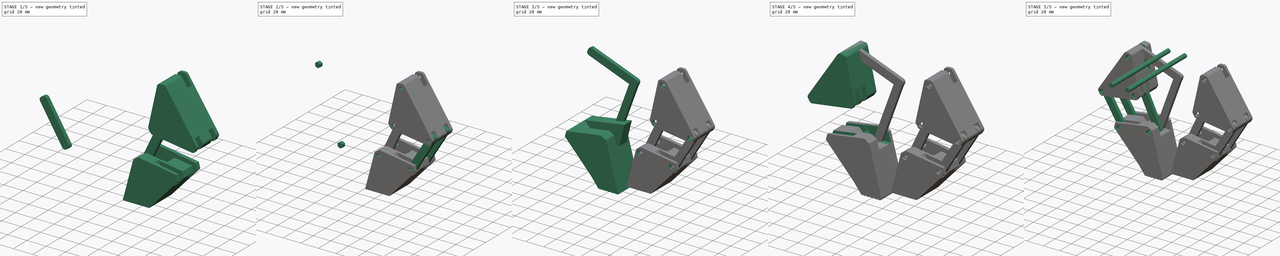
[diagram: build sequence overview — one tinted view per stage of 5, left to right]
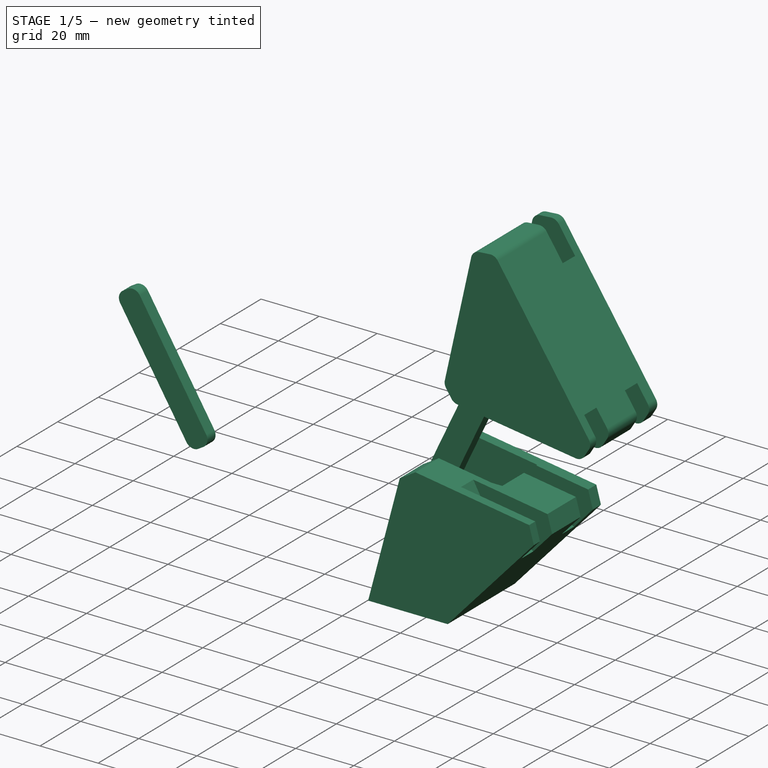
[diagram: stage 1 of 5 — iso view after this stage's code; geometry added in this stage tinted green]
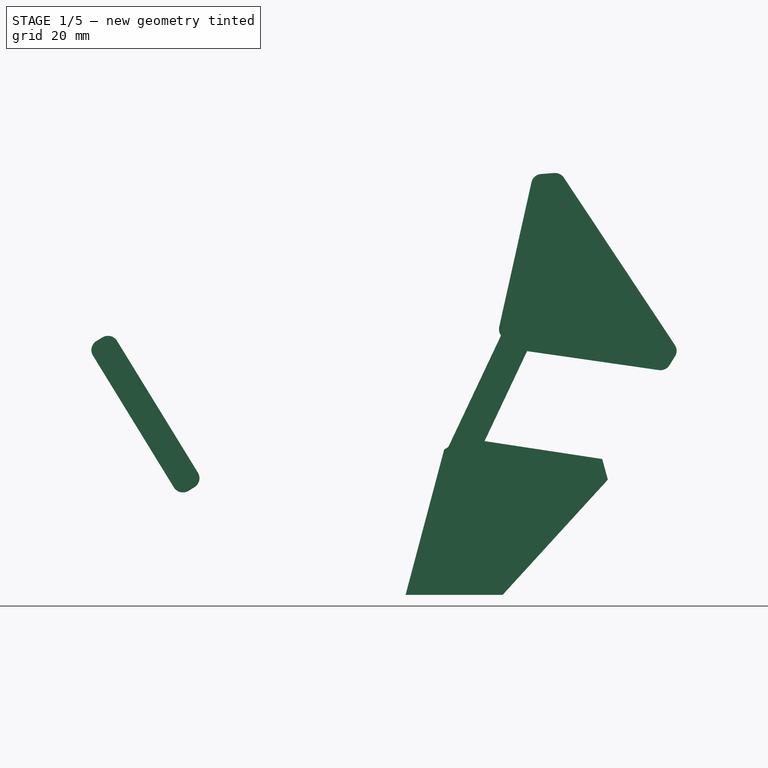
[diagram: stage 1 of 5 — front view after this stage's code; geometry added in this stage tinted green]
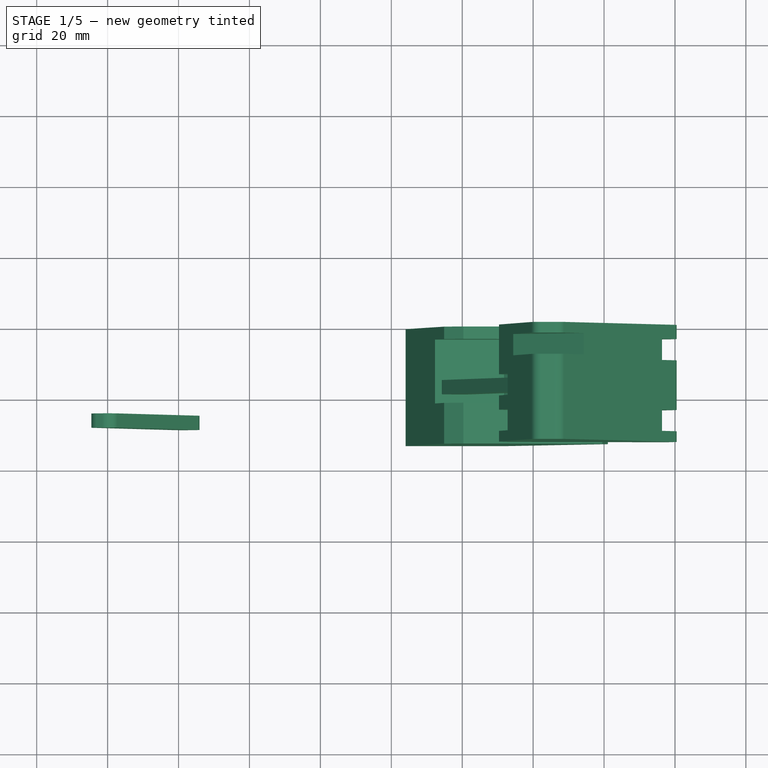
[diagram: stage 1 of 5 — top view after this stage's code; geometry added in this stage tinted green]
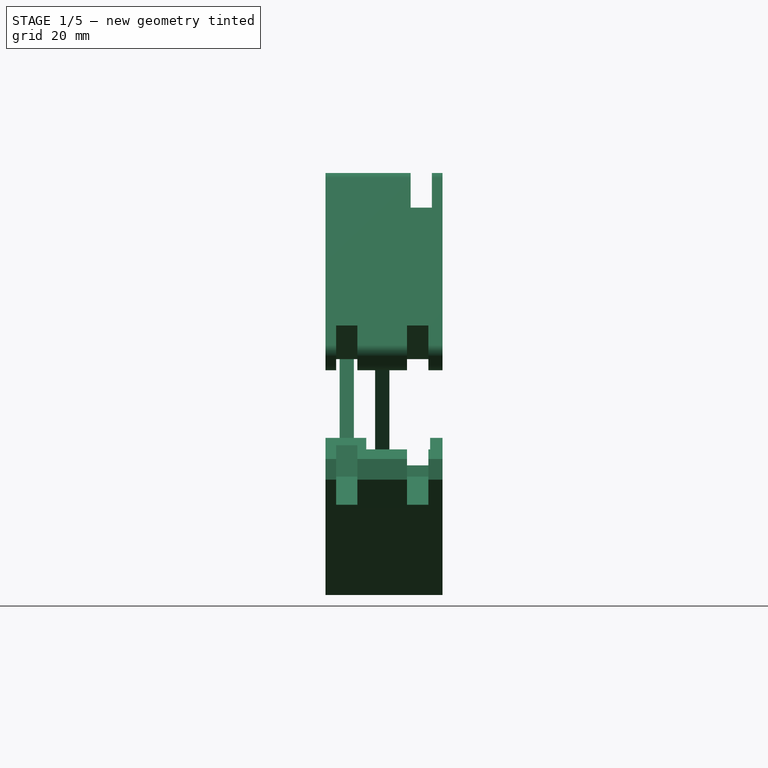
[diagram: stage 1 of 5 — right view after this stage's code; geometry added in this stage tinted green]
FCSTD DOCUMENT  (FreeCAD 0.15R4671 (Git))
Label: 3D basic leg without servo
License: All rights reserved
LicenseURL: http://es.wikipedia.org/wiki/Todos_los_derechos_reservados
objects: PartDesign::Pad×35, Sketcher::SketchObject×29, Part::Cut×18, Part::Mirroring×17, Part::Cylinder×12, Part::MultiFuse×11, Part::Fillet×5
note: 162 computed .brp shape members not serialized (recipe doc carries the construction recipe); baked Part::Feature solids carry a one-line shape summary decoded from their .brp

FEATURE [PartDesign::Pad] Pad075
  Length = 4
  Length2 = 100
  Placement = pos=(0,-15,0) rot=(1,0,0;1.5708rad)
  Sketch = -> Sketch079
  Type = 0
FEATURE [Sketcher::SketchObject] Sketch080
  Placement = pos=(0,-25,0) rot=(1,0,0;1.5708rad)
  sketch-geometry (4):
    g0: LineSegment StartX=-45.7022 StartY=-3.72195 StartZ=0 EndX=-38.9083 EndY=0.415547 EndZ=0
    g1: LineSegment StartX=-38.9083 StartY=0.415547 StartZ=0 EndX=-12.9682 EndY=-41.8491 EndZ=0
    g2: LineSegment StartX=-12.9682 StartY=-41.8491 StartZ=0 EndX=-19.7621 EndY=-45.9866 EndZ=0
    g3: LineSegment StartX=-19.7621 StartY=-45.9866 StartZ=0 EndX=-45.7022 EndY=-3.72195 EndZ=0
  constraints (6):
    c: Coincident(g0,g1)
    c: Coincident(g1,g2)
    c: Coincident(g2,g3)
    c: Coincident(g3,g0)
    c: Parallel(g3,g1)
    c: Parallel(g2,g0)
FEATURE [PartDesign::Pad] Pad076
  Length = 4
  Length2 = 100
  Placement = pos=(0,-25,0) rot=(1,0,0;1.5708rad)
  Sketch = -> Sketch080
  Type = 0
FEATURE [Part::Fillet] Fillet031
  Base = -> Pad076
  Edges = 4 edges r=3: [Edge1,Edge2,Edge5,Edge8]
FEATURE [Part::Fillet] Fillet032
  Base = -> Pad075
  Edges = 4 edges r=3: [Edge1,Edge2,Edge5,Edge8]
FEATURE [Part::Mirroring] Part__Mirroring029  label="Fillet017 (Mirror #14)001"
  Base = (0,0,0)
  Normal = (1,0,0)
  Placement = pos=(76,0,0) rot=(0,0,1;0rad)
  Source = -> Fillet032
FEATURE [PartDesign::Pad] Pad081
  Length = 33
  Length2 = 100
  Placement = pos=(-15,0,-10) rot=(0.913318,-0.287968,0.287968;1.66134rad)
  Type = 0
FEATURE [Sketcher::SketchObject] Sketch086
  Placement = pos=(0,0,0) rot=(1,0,0;1.5708rad)
  sketch-geometry (24):
    g0: LineSegment StartX=31.9221 StartY=-73.7642 StartZ=0 EndX=34.7157 EndY=-84.3474 EndZ=0
    g1: LineSegment StartX=34.7157 StartY=-84.3474 StartZ=0 EndX=31.0042 EndY=-84.3474 EndZ=0
    g2: LineSegment StartX=31.0042 StartY=-84.3474 StartZ=0 EndX=29.9949 EndY=-83.0102 EndZ=0
    g3: LineSegment StartX=29.9949 StartY=-83.0102 StartZ=0 EndX=29.0048 EndY=-82.9974 EndZ=0
    g4: LineSegment StartX=29.0048 StartY=-82.9974 StartZ=0 EndX=29.9744 EndY=-84.3565 EndZ=0
    g5: LineSegment StartX=29.9744 StartY=-84.3565 StartZ=0 EndX=27.0013 EndY=-84.3565 EndZ=0
    g6: LineSegment StartX=27.0013 StartY=-84.3565 StartZ=0 EndX=25.9942 EndY=-83.0138 EndZ=0
    g7: LineSegment StartX=25.9942 StartY=-83.0138 StartZ=0 EndX=24.9776 EndY=-83.0138 EndZ=0
    g8: LineSegment StartX=24.9776 StartY=-83.0138 StartZ=0 EndX=26.0038 EndY=-84.3756 EndZ=0
    g9: LineSegment StartX=26.0038 StartY=-84.3756 StartZ=0 EndX=23.0075 EndY=-84.3756 EndZ=0
    g10: LineSegment StartX=23.0075 StartY=-84.3756 StartZ=0 EndX=22.0197 EndY=-83.0236 EndZ=0
    g11: LineSegment StartX=22.0197 StartY=-83.0236 StartZ=0 EndX=20.9743 EndY=-83.0236 EndZ=0
    g12: LineSegment StartX=20.9743 StartY=-83.0236 StartZ=0 EndX=22.0005 EndY=-84.3663 EndZ=0
    g13: LineSegment StartX=22.0005 StartY=-84.3663 StartZ=0 EndX=19.0178 EndY=-84.3663 EndZ=0
    g14: LineSegment StartX=19.0178 StartY=-84.3663 StartZ=0 EndX=17.9916 EndY=-83.0045 EndZ=0
    g15: LineSegment StartX=17.9916 StartY=-83.0045 StartZ=0 EndX=16.9846 EndY=-83.0045 EndZ=0
    g16: LineSegment StartX=16.9846 StartY=-83.0045 StartZ=0 EndX=18.0012 EndY=-84.3663 EndZ=0
    g17: LineSegment StartX=18.0012 StartY=-84.3663 StartZ=0 EndX=15.0322 EndY=-84.3663 EndZ=0
    g18: LineSegment StartX=15.0322 StartY=-84.3663 StartZ=0 EndX=14.0131 EndY=-83.0204 EndZ=0
    g19: LineSegment StartX=14.0131 StartY=-83.0204 StartZ=0 EndX=12.9823 EndY=-83.0204 EndZ=0
    g20: LineSegment StartX=12.9823 StartY=-83.0204 StartZ=0 EndX=14.0014 EndY=-84.3792 EndZ=0
    g21: LineSegment StartX=14.0014 StartY=-84.3792 StartZ=0 EndX=12.6817 EndY=-84.3792 EndZ=0
    g22: LineSegment StartX=12.6817 StartY=-84.3792 StartZ=0 EndX=4.6509 EndY=-73.7642 EndZ=0
    g23: LineSegment StartX=4.6509 StartY=-73.7642 StartZ=0 EndX=31.9221 EndY=-73.7642 EndZ=0
  constraints (35):
    c: Coincident(g0,g1)
    c: Horizontal(g1)
    c: Coincident(g1,g2)
    c: Coincident(g2,g3)
    c: Coincident(g3,g4)
    c: Coincident(g4,g5)
    c: Horizontal(g5)
    c: Coincident(g5,g6)
    c: Coincident(g6,g7)
    c: Horizontal(g7)
    c: Coincident(g7,g8)
    c: Coincident(g8,g9)
    c: Horizontal(g9)
    c: Coincident(g9,g10)
    c: Coincident(g10,g11)
    c: Horizontal(g11)
    c: Coincident(g11,g12)
    c: Coincident(g12,g13)
    c: Horizontal(g13)
    c: Coincident(g13,g14)
    c: Coincident(g14,g15)
    c: Horizontal(g15)
    c: Coincident(g15,g16)
    c: Coincident(g16,g17)
    c: Horizontal(g17)
    c: Coincident(g17,g18)
    c: Coincident(g18,g19)
    c: Horizontal(g19)
    c: Coincident(g19,g20)
    c: Coincident(g20,g21)
    c: Horizontal(g21)
    c: Coincident(g21,g22)
    c: Coincident(g22,g23)
    c: Coincident(g23,g0)
    c: Horizontal(g23)
FEATURE [PartDesign::Pad] Pad082
  Length = 33
  Length2 = 100
  Placement = pos=(0,0,0) rot=(1,0,0;1.5708rad)
  Sketch = -> Sketch086
  Type = 0
FEATURE [Sketcher::SketchObject] Sketch087
  Placement = pos=(-4,-7,0) rot=(1,0,0;1.5708rad)
  sketch-geometry (8):
    g0: LineSegment StartX=12.9217 StartY=-76.0433 StartZ=0 EndX=12.9217 EndY=-72.6813 EndZ=0
    g1: LineSegment StartX=12.9217 StartY=-72.6813 StartZ=0 EndX=10.907 EndY=-71.0645 EndZ=0
    g2: LineSegment StartX=10.907 StartY=-71.0645 StartZ=0 EndX=12.9496 EndY=-67.9874 EndZ=0
    g3: LineSegment StartX=12.9496 StartY=-67.9874 StartZ=0 EndX=17.8943 EndY=-67.9874 EndZ=0
    g4: LineSegment StartX=17.8943 StartY=-67.9874 StartZ=0 EndX=19.9533 EndY=-71.0124 EndZ=0
    g5: LineSegment StartX=19.9533 StartY=-71.0124 StartZ=0 EndX=17.9933 EndY=-72.6487 EndZ=0
    g6: LineSegment StartX=17.9933 StartY=-72.6487 StartZ=0 EndX=17.9811 EndY=-76.0433 EndZ=0
    g7: LineSegment StartX=17.9811 StartY=-76.0433 StartZ=0 EndX=12.9217 EndY=-76.0433 EndZ=0
  constraints (11):
    c: Vertical(g0)
    c: Coincident(g0,g1)
    c: Coincident(g1,g2)
    c: Coincident(g2,g3)
    c: Horizontal(g3)
    c: Coincident(g3,g4)
    c: Coincident(g4,g5)
    c: Coincident(g6,g7)
    c: Coincident(g7,g0)
    c: Horizontal(g7)
    c: Coincident(g5,g6)
FEATURE [PartDesign::Pad] Pad083
  Length = 20
  Length2 = 100
  Placement = pos=(-4,-7,0) rot=(1,0,0;1.5708rad)
  Sketch = -> Sketch087
  Type = 0
FEATURE [Part::MultiFuse] Fusion022
  Shapes = -> [Pad083,Pad082]
FEATURE [Sketcher::SketchObject] Sketch088
  Placement = pos=(10,-7,0) rot=(1,0,0;1.5708rad)
  sketch-geometry (8):
    g0: LineSegment StartX=12.9217 StartY=-76.0433 StartZ=0 EndX=12.9217 EndY=-72.6813 EndZ=0
    g1: LineSegment StartX=12.9217 StartY=-72.6813 StartZ=0 EndX=10.907 EndY=-71.0645 EndZ=0
    g2: LineSegment StartX=10.907 StartY=-71.0645 StartZ=0 EndX=12.9496 EndY=-67.9874 EndZ=0
    g3: LineSegment StartX=12.9496 StartY=-67.9874 StartZ=0 EndX=17.8943 EndY=-67.9874 EndZ=0
    g4: LineSegment StartX=17.8943 StartY=-67.9874 StartZ=0 EndX=19.9533 EndY=-71.0124 EndZ=0
    g5: LineSegment StartX=19.9533 StartY=-71.0124 StartZ=0 EndX=17.9933 EndY=-72.6487 EndZ=0
    g6: LineSegment StartX=17.9933 StartY=-72.6487 StartZ=0 EndX=17.9811 EndY=-76.0433 EndZ=0
    g7: LineSegment StartX=17.9811 StartY=-76.0433 StartZ=0 EndX=12.9217 EndY=-76.0433 EndZ=0
  constraints (11):
    c: Vertical(g0)
    c: Coincident(g0,g1)
    c: Coincident(g1,g2)
    c: Coincident(g2,g3)
    c: Horizontal(g3)
    c: Coincident(g3,g4)
    c: Coincident(g4,g5)
    c: Coincident(g6,g7)
    c: Coincident(g7,g0)
    c: Horizontal(g7)
    c: Coincident(g5,g6)
FEATURE [PartDesign::Pad] Pad084
  Length = 20
  Length2 = 100
  Placement = pos=(10,-7,0) rot=(1,0,0;1.5708rad)
  Sketch = -> Sketch088
  Type = 0
FEATURE [Part::MultiFuse] Fusion023
  Shapes = -> [Fusion022,Pad084]
FEATURE [Part::Cut] Cut025
  Base = -> Pad081
  Tool = -> Fusion023
FEATURE [Sketcher::SketchObject] Sketch094
  Placement = pos=(0,-4,0) rot=(1,0,0;1.5708rad)
  sketch-geometry (4):
    g0: LineSegment StartX=-22.8766 StartY=-50.4589 StartZ=0 EndX=-2.79575 EndY=-40.4184 EndZ=0
    g1: LineSegment StartX=-2.79575 StartY=-40.4184 StartZ=0 EndX=3.5228 EndY=-28.9065 EndZ=0
    g2: LineSegment StartX=3.5228 StartY=-28.9065 StartZ=0 EndX=-39.4087 EndY=-32.8015 EndZ=0
    g3: LineSegment StartX=-39.4087 StartY=-32.8015 StartZ=0 EndX=-22.8766 EndY=-50.4589 EndZ=0
  constraints (4):
    c: Coincident(g0,g1)
    c: Coincident(g1,g2)
    c: Coincident(g2,g3)
    c: Coincident(g3,g0)
FEATURE [PartDesign::Pad] Pad090
  Length = 6
  Length2 = 100
  Placement = pos=(0,-4,0) rot=(1,0,0;1.5708rad)
  Sketch = -> Sketch094
  Type = 0
FEATURE [Sketcher::SketchObject] Sketch095
  Placement = pos=(0,-24,0) rot=(1,0,0;1.5708rad)
  sketch-geometry (4):
    g0: LineSegment StartX=-22.8766 StartY=-50.4589 StartZ=0 EndX=-2.79575 EndY=-40.4184 EndZ=0
    g1: LineSegment StartX=-2.79575 StartY=-40.4184 StartZ=0 EndX=3.5228 EndY=-28.9065 EndZ=0
    g2: LineSegment StartX=3.5228 StartY=-28.9065 StartZ=0 EndX=-39.4087 EndY=-32.8015 EndZ=0
    g3: LineSegment StartX=-39.4087 StartY=-32.8015 StartZ=0 EndX=-22.8766 EndY=-50.4589 EndZ=0
  constraints (4):
    c: Coincident(g0,g1)
    c: Coincident(g1,g2)
    c: Coincident(g2,g3)
    c: Coincident(g3,g0)
FEATURE [PartDesign::Pad] Pad091
  Length = 6
  Length2 = 100
  Placement = pos=(0,-24,0) rot=(1,0,0;1.5708rad)
  Sketch = -> Sketch095
  Type = 0
FEATURE [Sketcher::SketchObject] Sketch096
  Placement = pos=(0,-3.5,0) rot=(1,0,0;1.5708rad)
  sketch-geometry (4):
    g0: LineSegment StartX=26.8543 StartY=-42.5089 StartZ=0 EndX=4.22651 EndY=-42.5089 EndZ=0
    g1: LineSegment StartX=4.22651 StartY=-42.5089 StartZ=0 EndX=-12.0771 EndY=-26.2633 EndZ=0
    g2: LineSegment StartX=-12.0771 StartY=-26.2633 StartZ=0 EndX=32.6562 EndY=-19.1269 EndZ=0
    g3: LineSegment StartX=32.6562 StartY=-19.1269 StartZ=0 EndX=26.8543 EndY=-42.5089 EndZ=0
  constraints (5):
    c: Horizontal(g0)
    c: Coincident(g0,g1)
    c: Coincident(g1,g2)
    c: Coincident(g2,g3)
    c: Coincident(g3,g0)
FEATURE [PartDesign::Pad] Pad092
  Length = 18
  Length2 = 100
  Placement = pos=(0,-3.5,0) rot=(1,0,0;1.5708rad)
  Sketch = -> Sketch096
  Type = 0
FEATURE [Part::Cut] Cut030
  Base = -> Cut025
  Tool = -> Pad092
FEATURE [Part::Cut] Cut031
  Base = -> Cut030
  Tool = -> Pad091
FEATURE [Part::Cut] Cut032
  Base = -> Cut031
  Tool = -> Pad090
FEATURE [Part::Mirroring] Part__Mirroring031  label="Cut015 (Mirror #19)001"
  Base = (0,0,0)
  Normal = (1,0,0)
  Placement = pos=(76,0,0) rot=(0,0,1;0rad)
FEATURE [Part::Mirroring] Part__Mirroring032  label="Cut018 (Mirror #20)001"
  Base = (0,0,0)
  Normal = (1,0,0)
  Placement = pos=(76,0,0) rot=(0,0,1;0rad)
  Source = -> Cut032
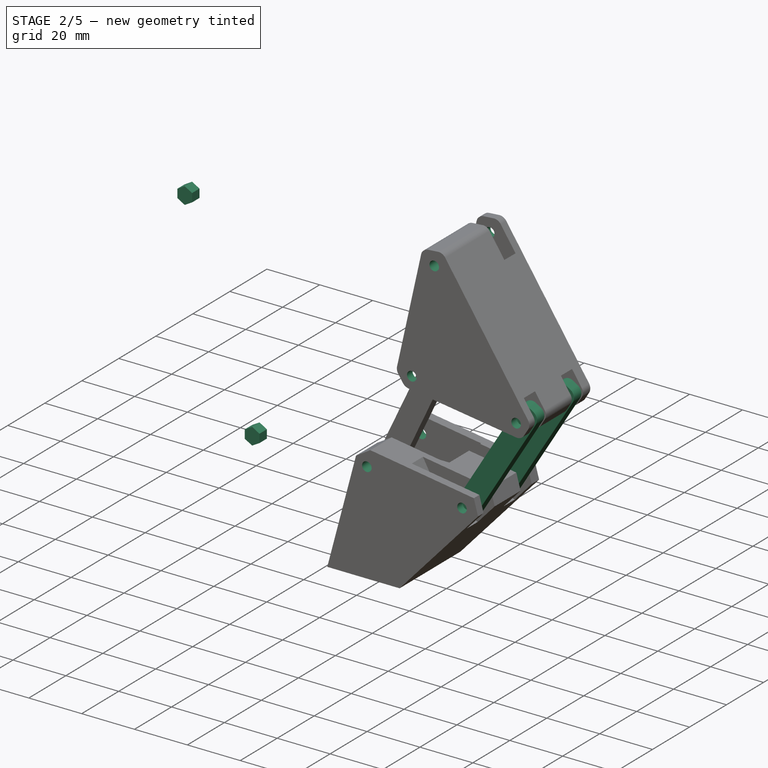
[diagram: stage 2 of 5 — iso view after this stage's code; geometry added in this stage tinted green]
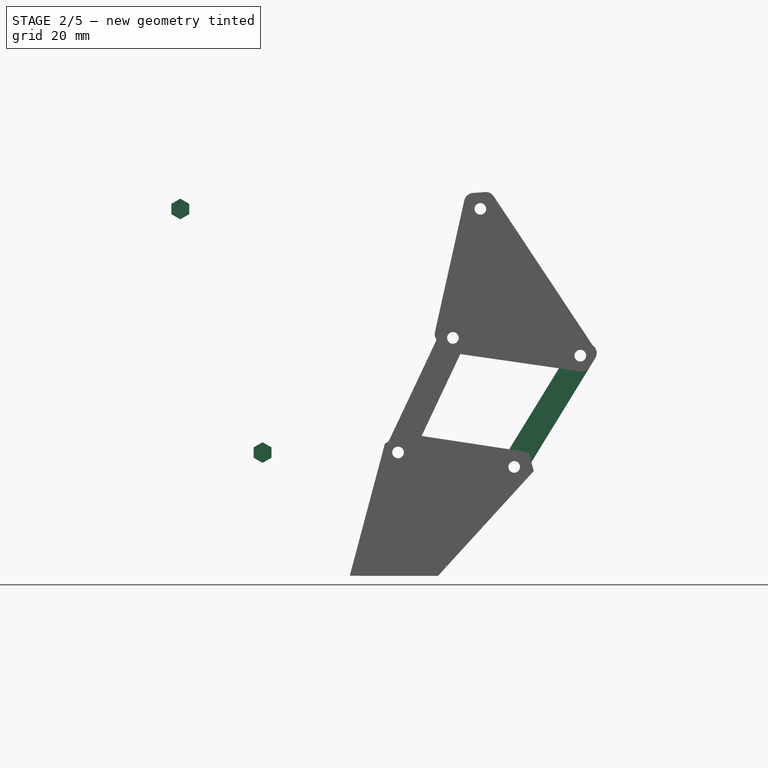
[diagram: stage 2 of 5 — front view after this stage's code; geometry added in this stage tinted green]
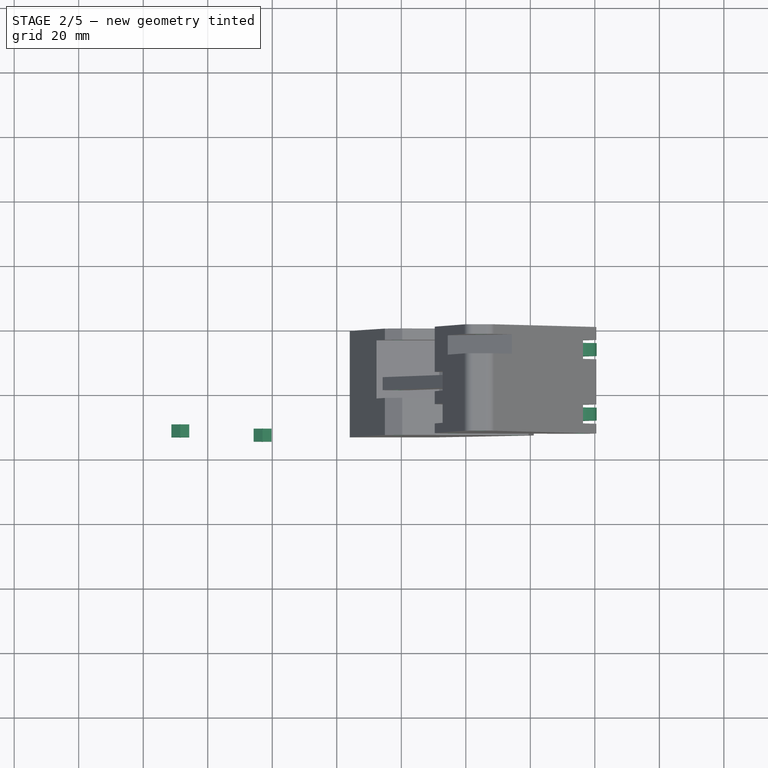
[diagram: stage 2 of 5 — top view after this stage's code; geometry added in this stage tinted green]
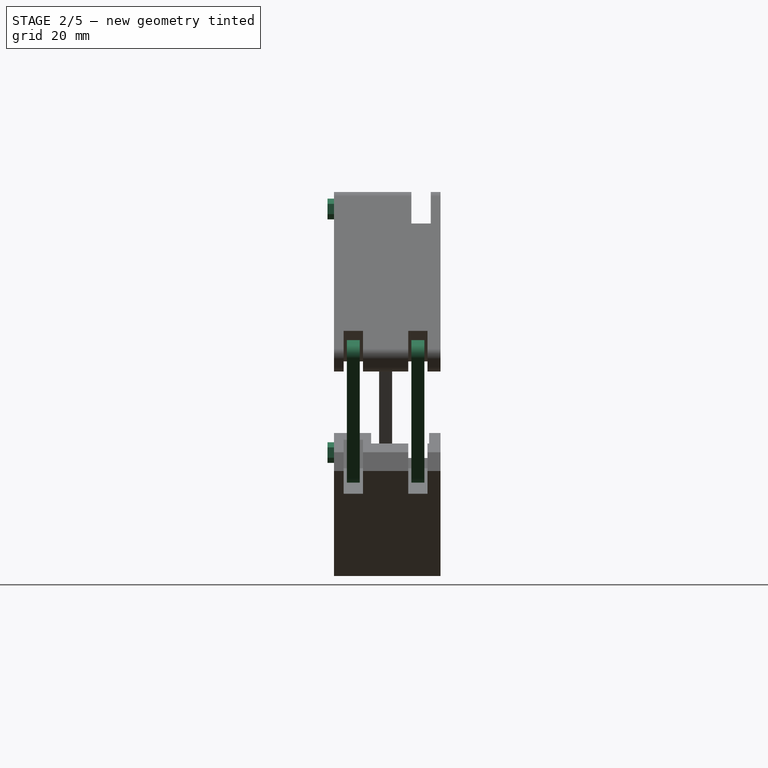
[diagram: stage 2 of 5 — right view after this stage's code; geometry added in this stage tinted green]
FEATURE [Part::Cylinder] Cylinder035  label="Cilindro035"
  Angle = 360
  Height = 100
  Placement = pos=(-8.5,30,40) rot=(1,0,0;1.5708rad)
  Radius = 1.8
FEATURE [Part::Cylinder] Cylinder036  label="Cilindro036"
  Angle = 360
  Height = 100
  Placement = pos=(0,30,0) rot=(1,0,0;1.5708rad)
  Radius = 1.8
FEATURE [Part::Cylinder] Cylinder037  label="Cilindro037"
  Angle = 360
  Height = 100
  Placement = pos=(-39.5,30,-5.5) rot=(1,0,0;1.5708rad)
  Radius = 1.8
FEATURE [Part::Cylinder] Cylinder038  label="Cilindro038"
  Angle = 360
  Height = 100
  Placement = pos=(-19,30,-40) rot=(1,0,0;1.5708rad)
  Radius = 1.8
FEATURE [Part::Cylinder] Cylinder039  label="Cilindro039"
  Angle = 360
  Height = 100
  Placement = pos=(17,30,-35.5) rot=(1,0,0;1.5708rad)
  Radius = 1.8
FEATURE [Sketcher::SketchObject] Sketch078
  Placement = pos=(0,-5,0) rot=(1,0,0;1.5708rad)
  sketch-geometry (4):
    g0: LineSegment StartX=-45.7022 StartY=-3.72195 StartZ=0 EndX=-38.9083 EndY=0.415547 EndZ=0
    g1: LineSegment StartX=-38.9083 StartY=0.415547 StartZ=0 EndX=-12.9682 EndY=-41.8491 EndZ=0
    g2: LineSegment StartX=-12.9682 StartY=-41.8491 StartZ=0 EndX=-19.7621 EndY=-45.9866 EndZ=0
    g3: LineSegment StartX=-19.7621 StartY=-45.9866 StartZ=0 EndX=-45.7022 EndY=-3.72195 EndZ=0
  constraints (6):
    c: Coincident(g0,g1)
    c: Coincident(g1,g2)
    c: Coincident(g2,g3)
    c: Coincident(g3,g0)
    c: Parallel(g3,g1)
    c: Parallel(g2,g0)
FEATURE [Sketcher::SketchObject] Sketch079
  Placement = pos=(0,-15,0) rot=(1,0,0;1.5708rad)
  sketch-geometry (4):
    g0: LineSegment StartX=-5.8347 StartY=2.47919 StartZ=0 EndX=2.12677 EndY=5.59698 EndZ=0
    g1: LineSegment StartX=2.12677 StartY=5.59698 StartZ=0 EndX=22.8292 EndY=-38.2205 EndZ=0
    g2: LineSegment StartX=22.8292 StartY=-38.2205 StartZ=0 EndX=14.8678 EndY=-41.3383 EndZ=0
    g3: LineSegment StartX=14.8678 StartY=-41.3383 StartZ=0 EndX=-5.8347 EndY=2.47919 EndZ=0
  constraints (6):
    c: Coincident(g0,g1)
    c: Coincident(g1,g2)
    c: Coincident(g2,g3)
    c: Coincident(g3,g0)
    c: Parallel(g3,g1)
    c: Parallel(g2,g0)
FEATURE [PartDesign::Pad] Pad074
  Length = 4
  Length2 = 100
  Placement = pos=(0,-5,0) rot=(1,0,0;1.5708rad)
  Sketch = -> Sketch078
  Type = 0
FEATURE [Part::Fillet] Fillet030
  Base = -> Pad074
  Edges = 4 edges r=3: [Edge1,Edge2,Edge5,Edge8]
FEATURE [Part::Mirroring] Part__Mirroring021  label="Cilindro008 (Mirror #4)001"
  Base = (0,0,0)
  Normal = (1,0,0)
  Placement = pos=(76,0,0) rot=(0,0,1;0rad)
  Source = -> Cylinder035
FEATURE [Part::Mirroring] Part__Mirroring022  label="Cilindro012 (Mirror #7)001"
  Base = (0,0,0)
  Normal = (1,0,0)
  Placement = pos=(76,0,0) rot=(0,0,1;0rad)
  Source = -> Cylinder036
FEATURE [Part::Mirroring] Part__Mirroring023  label="Cilindro013 (Mirror #8)001"
  Base = (0,0,0)
  Normal = (1,0,0)
  Placement = pos=(76,0,0) rot=(0,0,1;0rad)
  Source = -> Cylinder037
FEATURE [Part::Mirroring] Part__Mirroring024  label="Cilindro014 (Mirror #9)001"
  Base = (0,0,0)
  Normal = (1,0,0)
  Placement = pos=(76,0,0) rot=(0,0,1;0rad)
  Source = -> Cylinder038
FEATURE [Part::Mirroring] Part__Mirroring025  label="Cilindro015 (Mirror #10)001"
  Base = (0,0,0)
  Normal = (1,0,0)
  Placement = pos=(76,0,0) rot=(0,0,1;0rad)
  Source = -> Cylinder039
FEATURE [Part::Mirroring] Part__Mirroring027  label="Fillet015 (Mirror #12)001"
  Base = (0,0,0)
  Normal = (1,0,0)
  Placement = pos=(76,0,0) rot=(0,0,1;0rad)
  Source = -> Fillet030
FEATURE [Part::Mirroring] Part__Mirroring028  label="Fillet016 (Mirror #13)001"
  Base = (0,0,0)
  Normal = (1,0,0)
  Placement = pos=(76,0,0) rot=(0,0,1;0rad)
  Source = -> Fillet031
FEATURE [Sketcher::SketchObject] Sketch105
  Placement = pos=(17,-31,-35.5) rot=(1,0,0;1.5708rad)
  sketch-geometry (7):
    g0: LineSegment StartX=-0.014307 StartY=-3.24781 StartZ=0 EndX=2.7612 EndY=-1.64537 EndZ=0
    g1: LineSegment StartX=2.7612 StartY=-1.64537 StartZ=0 EndX=2.7612 EndY=1.55952 EndZ=0
    g2: LineSegment StartX=2.7612 StartY=1.55952 StartZ=0 EndX=-0.014307 EndY=3.16196 EndZ=0
    g3: LineSegment StartX=-0.014307 StartY=3.16196 StartZ=0 EndX=-2.78982 EndY=1.55952 EndZ=0
    g4: LineSegment StartX=-2.78982 StartY=1.55952 StartZ=0 EndX=-2.78982 EndY=-1.64537 EndZ=0
    g5: LineSegment StartX=-2.78982 StartY=-1.64537 StartZ=0 EndX=-0.014307 EndY=-3.24781 EndZ=0
    g6: Circle [constr] CenterX=-0.014307 CenterY=-0.042923 CenterZ=0 NormalX=0 NormalY=0 NormalZ=1 Radius=3.20488
  constraints (15):
    c: Coincident(g0,g1)
    c: Coincident(g1,g2)
    c: Coincident(g2,g3)
    c: Coincident(g3,g4)
    c: Coincident(g4,g5)
    c: Coincident(g5,g0)
    c: Equal(g0, g1-g5) x5
    c: PointOnObject(g0,g6)
    c: PointOnObject(g1,g6)
    c: PointOnObject(g2,g6)
    c: PointOnObject(g3,g6)
    c: PointOnObject(g4,g6)
    c: PointOnObject(g5,g6)
    c: PointOnObject(g3,g-2)
    c: Vertical(g4)
FEATURE [PartDesign::Pad] Pad101
  Length = 4
  Length2 = 100
  Placement = pos=(17,-31,-35.5) rot=(1,0,0;1.5708rad)
  Sketch = -> Sketch105
  Type = 0
FEATURE [Sketcher::SketchObject] Sketch106
  Placement = pos=(-8.5,-31,40) rot=(1,0,0;1.5708rad)
  sketch-geometry (7):
    g0: LineSegment StartX=-0.014307 StartY=-3.24781 StartZ=0 EndX=2.7612 EndY=-1.64537 EndZ=0
    g1: LineSegment StartX=2.7612 StartY=-1.64537 StartZ=0 EndX=2.7612 EndY=1.55952 EndZ=0
    g2: LineSegment StartX=2.7612 StartY=1.55952 StartZ=0 EndX=-0.014307 EndY=3.16196 EndZ=0
    g3: LineSegment StartX=-0.014307 StartY=3.16196 StartZ=0 EndX=-2.78982 EndY=1.55952 EndZ=0
    g4: LineSegment StartX=-2.78982 StartY=1.55952 StartZ=0 EndX=-2.78982 EndY=-1.64537 EndZ=0
    g5: LineSegment StartX=-2.78982 StartY=-1.64537 StartZ=0 EndX=-0.014307 EndY=-3.24781 EndZ=0
    g6: Circle [constr] CenterX=-0.014307 CenterY=-0.042923 CenterZ=0 NormalX=0 NormalY=0 NormalZ=1 Radius=3.20488
  constraints (15):
    c: Coincident(g0,g1)
    c: Coincident(g1,g2)
    c: Coincident(g2,g3)
    c: Coincident(g3,g4)
    c: Coincident(g4,g5)
    c: Coincident(g5,g0)
    c: Equal(g0, g1-g5) x5
    c: PointOnObject(g0,g6)
    c: PointOnObject(g1,g6)
    c: PointOnObject(g2,g6)
    c: PointOnObject(g3,g6)
    c: PointOnObject(g4,g6)
    c: PointOnObject(g5,g6)
    c: PointOnObject(g3,g-2)
    c: Vertical(g4)
FEATURE [PartDesign::Pad] Pad102
  Length = 4
  Length2 = 100
  Placement = pos=(-8.5,-31,40) rot=(1,0,0;1.5708rad)
  Sketch = -> Sketch106
  Type = 0
FEATURE [Part::MultiFuse] Fusion033
  Shapes = -> [Part__Mirroring025,Part__Mirroring024,Part__Mirroring022,Part__Mirroring023,Part__Mirroring021]
FEATURE [Part::MultiFuse] Fusion035
  Shapes = -> [Part__Mirroring028,Part__Mirroring029,Part__Mirroring027,Part__Mirroring031,Part__Mirroring032]
FEATURE [Part::Cut] Cut042
  Base = -> Fusion035
  Tool = -> Fusion033
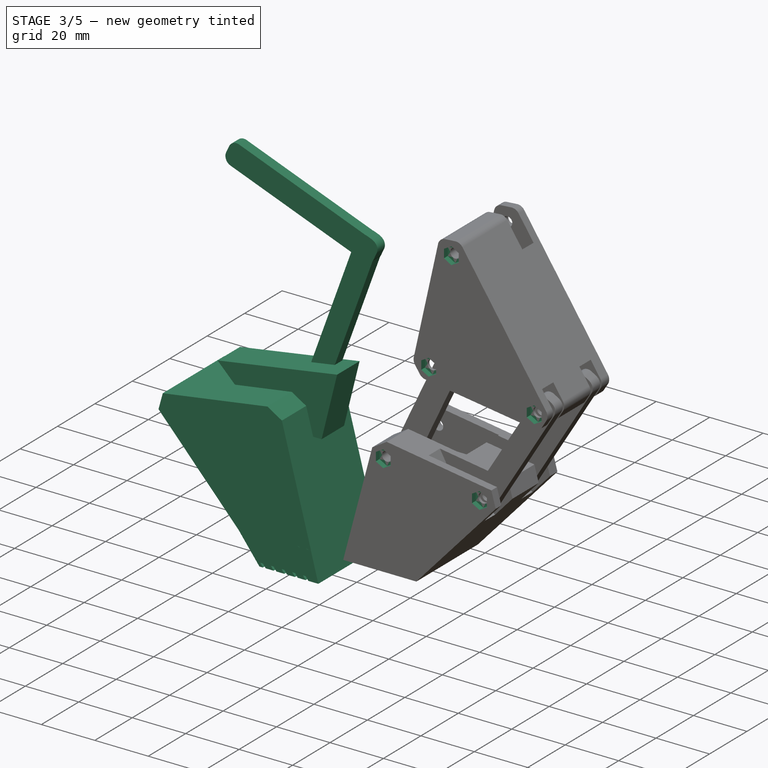
[diagram: stage 3 of 5 — iso view after this stage's code; geometry added in this stage tinted green]
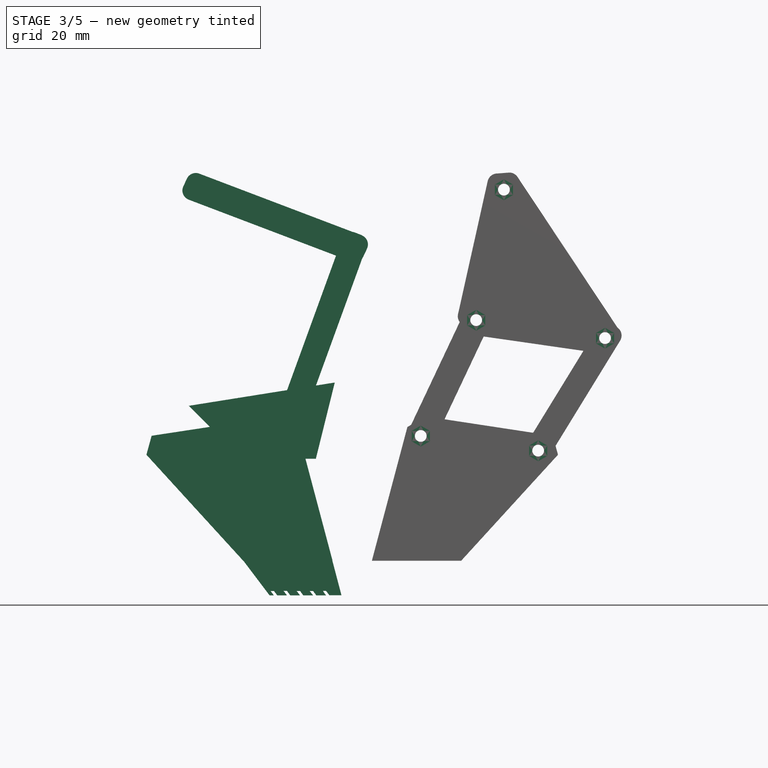
[diagram: stage 3 of 5 — front view after this stage's code; geometry added in this stage tinted green]
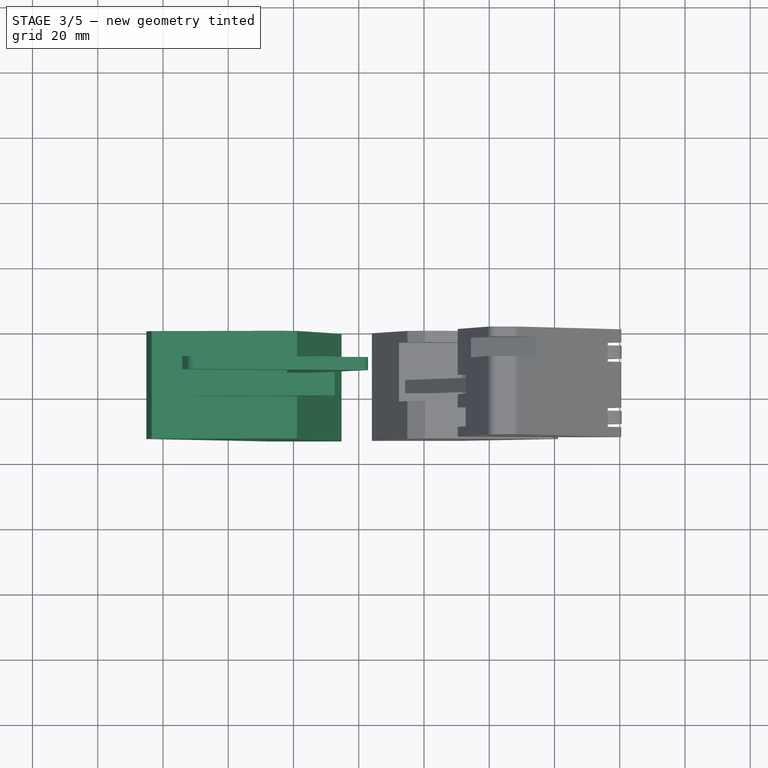
[diagram: stage 3 of 5 — top view after this stage's code; geometry added in this stage tinted green]
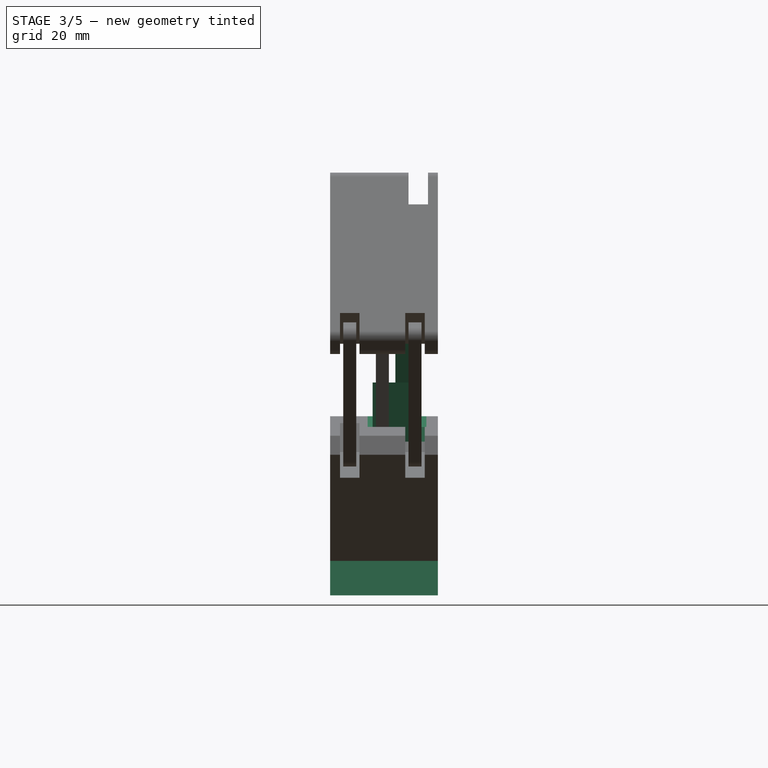
[diagram: stage 3 of 5 — right view after this stage's code; geometry added in this stage tinted green]
FEATURE [Part::Mirroring] Part__Mirroring010  label="Fillet014 (Mirror #11)"
  Base = (0,0,0)
  Normal = (1,0,0)
  Placement = pos=(76,0,0) rot=(0,0,1;0rad)
FEATURE [Part::Mirroring] Part__Mirroring014  label="Fillet018 (Mirror #15)"
  Base = (0,0,0)
  Normal = (1,0,0)
  Placement = pos=(76,0,0) rot=(0,0,1;0rad)
FEATURE [Part::Mirroring] Part__Mirroring017  label="Fillet024 (Mirror #18)"
  Base = (0,0,0)
  Normal = (1,0,0)
  Placement = pos=(76,0,0) rot=(0,0,1;0rad)
FEATURE [PartDesign::Pad] Pad065
  Length = 33
  Length2 = 100
  Placement = pos=(-15,0,-10) rot=(0.913318,-0.287968,0.287968;1.66134rad)
  Type = 0
FEATURE [Sketcher::SketchObject] Sketch075
  Placement = pos=(0,0,0) rot=(1,0,0;1.5708rad)
  sketch-geometry (24):
    g0: LineSegment StartX=31.9221 StartY=-73.7642 StartZ=0 EndX=34.7157 EndY=-84.3474 EndZ=0
    g1: LineSegment StartX=34.7157 StartY=-84.3474 StartZ=0 EndX=31.0042 EndY=-84.3474 EndZ=0
    g2: LineSegment StartX=31.0042 StartY=-84.3474 StartZ=0 EndX=29.9949 EndY=-83.0102 EndZ=0
    g3: LineSegment StartX=29.9949 StartY=-83.0102 StartZ=0 EndX=29.0048 EndY=-82.9974 EndZ=0
    g4: LineSegment StartX=29.0048 StartY=-82.9974 StartZ=0 EndX=29.9744 EndY=-84.3565 EndZ=0
    g5: LineSegment StartX=29.9744 StartY=-84.3565 StartZ=0 EndX=27.0013 EndY=-84.3565 EndZ=0
    g6: LineSegment StartX=27.0013 StartY=-84.3565 StartZ=0 EndX=25.9942 EndY=-83.0138 EndZ=0
    g7: LineSegment StartX=25.9942 StartY=-83.0138 StartZ=0 EndX=24.9776 EndY=-83.0138 EndZ=0
    g8: LineSegment StartX=24.9776 StartY=-83.0138 StartZ=0 EndX=26.0038 EndY=-84.3756 EndZ=0
    g9: LineSegment StartX=26.0038 StartY=-84.3756 StartZ=0 EndX=23.0075 EndY=-84.3756 EndZ=0
    g10: LineSegment StartX=23.0075 StartY=-84.3756 StartZ=0 EndX=22.0197 EndY=-83.0236 EndZ=0
    g11: LineSegment StartX=22.0197 StartY=-83.0236 StartZ=0 EndX=20.9743 EndY=-83.0236 EndZ=0
    g12: LineSegment StartX=20.9743 StartY=-83.0236 StartZ=0 EndX=22.0005 EndY=-84.3663 EndZ=0
    g13: LineSegment StartX=22.0005 StartY=-84.3663 StartZ=0 EndX=19.0178 EndY=-84.3663 EndZ=0
    g14: LineSegment StartX=19.0178 StartY=-84.3663 StartZ=0 EndX=17.9916 EndY=-83.0045 EndZ=0
    g15: LineSegment StartX=17.9916 StartY=-83.0045 StartZ=0 EndX=16.9846 EndY=-83.0045 EndZ=0
    g16: LineSegment StartX=16.9846 StartY=-83.0045 StartZ=0 EndX=18.0012 EndY=-84.3663 EndZ=0
    g17: LineSegment StartX=18.0012 StartY=-84.3663 StartZ=0 EndX=15.0322 EndY=-84.3663 EndZ=0
    g18: LineSegment StartX=15.0322 StartY=-84.3663 StartZ=0 EndX=14.0131 EndY=-83.0204 EndZ=0
    g19: LineSegment StartX=14.0131 StartY=-83.0204 StartZ=0 EndX=12.9823 EndY=-83.0204 EndZ=0
    g20: LineSegment StartX=12.9823 StartY=-83.0204 StartZ=0 EndX=14.0014 EndY=-84.3792 EndZ=0
    g21: LineSegment StartX=14.0014 StartY=-84.3792 StartZ=0 EndX=12.6817 EndY=-84.3792 EndZ=0
    g22: LineSegment StartX=12.6817 StartY=-84.3792 StartZ=0 EndX=4.6509 EndY=-73.7642 EndZ=0
    g23: LineSegment StartX=4.6509 StartY=-73.7642 StartZ=0 EndX=31.9221 EndY=-73.7642 EndZ=0
  constraints (35):
    c: Coincident(g0,g1)
    c: Horizontal(g1)
    c: Coincident(g1,g2)
    c: Coincident(g2,g3)
    c: Coincident(g3,g4)
    c: Coincident(g4,g5)
    c: Horizontal(g5)
    c: Coincident(g5,g6)
    c: Coincident(g6,g7)
    c: Horizontal(g7)
    c: Coincident(g7,g8)
    c: Coincident(g8,g9)
    c: Horizontal(g9)
    c: Coincident(g9,g10)
    c: Coincident(g10,g11)
    c: Horizontal(g11)
    c: Coincident(g11,g12)
    c: Coincident(g12,g13)
    c: Horizontal(g13)
    c: Coincident(g13,g14)
    c: Coincident(g14,g15)
    c: Horizontal(g15)
    c: Coincident(g15,g16)
    c: Coincident(g16,g17)
    c: Horizontal(g17)
    c: Coincident(g17,g18)
    c: Coincident(g18,g19)
    c: Horizontal(g19)
    c: Coincident(g19,g20)
    c: Coincident(g20,g21)
    c: Horizontal(g21)
    c: Coincident(g21,g22)
    c: Coincident(g22,g23)
    c: Coincident(g23,g0)
    c: Horizontal(g23)
FEATURE [PartDesign::Pad] Pad071
  Length = 33
  Length2 = 100
  Placement = pos=(0,0,0) rot=(1,0,0;1.5708rad)
  Sketch = -> Sketch075
  Type = 0
FEATURE [Sketcher::SketchObject] Sketch076
  Placement = pos=(-4,-7,0) rot=(1,0,0;1.5708rad)
  sketch-geometry (8):
    g0: LineSegment StartX=12.9217 StartY=-76.0433 StartZ=0 EndX=12.9217 EndY=-72.6813 EndZ=0
    g1: LineSegment StartX=12.9217 StartY=-72.6813 StartZ=0 EndX=10.907 EndY=-71.0645 EndZ=0
    g2: LineSegment StartX=10.907 StartY=-71.0645 StartZ=0 EndX=12.9496 EndY=-67.9874 EndZ=0
    g3: LineSegment StartX=12.9496 StartY=-67.9874 StartZ=0 EndX=17.8943 EndY=-67.9874 EndZ=0
    g4: LineSegment StartX=17.8943 StartY=-67.9874 StartZ=0 EndX=19.9533 EndY=-71.0124 EndZ=0
    g5: LineSegment StartX=19.9533 StartY=-71.0124 StartZ=0 EndX=17.9933 EndY=-72.6487 EndZ=0
    g6: LineSegment StartX=17.9933 StartY=-72.6487 StartZ=0 EndX=17.9811 EndY=-76.0433 EndZ=0
    g7: LineSegment StartX=17.9811 StartY=-76.0433 StartZ=0 EndX=12.9217 EndY=-76.0433 EndZ=0
  constraints (11):
    c: Vertical(g0)
    c: Coincident(g0,g1)
    c: Coincident(g1,g2)
    c: Coincident(g2,g3)
    c: Horizontal(g3)
    c: Coincident(g3,g4)
    c: Coincident(g4,g5)
    c: Coincident(g6,g7)
    c: Coincident(g7,g0)
    c: Horizontal(g7)
    c: Coincident(g5,g6)
FEATURE [PartDesign::Pad] Pad072
  Length = 20
  Length2 = 100
  Placement = pos=(-4,-7,0) rot=(1,0,0;1.5708rad)
  Sketch = -> Sketch076
  Type = 0
FEATURE [Part::MultiFuse] Fusion018
  Shapes = -> [Pad072,Pad071]
FEATURE [Sketcher::SketchObject] Sketch077
  Placement = pos=(10,-7,0) rot=(1,0,0;1.5708rad)
  sketch-geometry (8):
    g0: LineSegment StartX=12.9217 StartY=-76.0433 StartZ=0 EndX=12.9217 EndY=-72.6813 EndZ=0
    g1: LineSegment StartX=12.9217 StartY=-72.6813 StartZ=0 EndX=10.907 EndY=-71.0645 EndZ=0
    g2: LineSegment StartX=10.907 StartY=-71.0645 StartZ=0 EndX=12.9496 EndY=-67.9874 EndZ=0
    g3: LineSegment StartX=12.9496 StartY=-67.9874 StartZ=0 EndX=17.8943 EndY=-67.9874 EndZ=0
    g4: LineSegment StartX=17.8943 StartY=-67.9874 StartZ=0 EndX=19.9533 EndY=-71.0124 EndZ=0
    g5: LineSegment StartX=19.9533 StartY=-71.0124 StartZ=0 EndX=17.9933 EndY=-72.6487 EndZ=0
    g6: LineSegment StartX=17.9933 StartY=-72.6487 StartZ=0 EndX=17.9811 EndY=-76.0433 EndZ=0
    g7: LineSegment StartX=17.9811 StartY=-76.0433 StartZ=0 EndX=12.9217 EndY=-76.0433 EndZ=0
  constraints (11):
    c: Vertical(g0)
    c: Coincident(g0,g1)
    c: Coincident(g1,g2)
    c: Coincident(g2,g3)
    c: Horizontal(g3)
    c: Coincident(g3,g4)
    c: Coincident(g4,g5)
    c: Coincident(g6,g7)
    c: Coincident(g7,g0)
    c: Horizontal(g7)
    c: Coincident(g5,g6)
FEATURE [PartDesign::Pad] Pad073
  Length = 20
  Length2 = 100
  Placement = pos=(10,-7,0) rot=(1,0,0;1.5708rad)
  Sketch = -> Sketch077
  Type = 0
FEATURE [Part::MultiFuse] Fusion019
  Shapes = -> [Fusion018,Pad073]
FEATURE [Sketcher::SketchObject] Sketch083
  Placement = pos=(0,-8,0) rot=(1,0,0;1.5708rad)
  sketch-geometry (4):
    g0: LineSegment StartX=26.8543 StartY=-42.5089 StartZ=0 EndX=4.22651 EndY=-42.5089 EndZ=0
    g1: LineSegment StartX=4.22651 StartY=-42.5089 StartZ=0 EndX=-12.0771 EndY=-26.2633 EndZ=0
    g2: LineSegment StartX=-12.0771 StartY=-26.2633 StartZ=0 EndX=32.6562 EndY=-19.1269 EndZ=0
    g3: LineSegment StartX=32.6562 StartY=-19.1269 StartZ=0 EndX=26.8543 EndY=-42.5089 EndZ=0
  constraints (5):
    c: Horizontal(g0)
    c: Coincident(g0,g1)
    c: Coincident(g1,g2)
    c: Coincident(g2,g3)
    c: Coincident(g3,g0)
FEATURE [PartDesign::Pad] Pad079
  Length = 12
  Length2 = 100
  Placement = pos=(0,-8,0) rot=(1,0,0;1.5708rad)
  Sketch = -> Sketch083
  Type = 0
FEATURE [Sketcher::SketchObject] Sketch102
  Placement = pos=(0,-31,0) rot=(1,0,0;1.5708rad)
  sketch-geometry (7):
    g0: LineSegment StartX=-0.014307 StartY=-3.24781 StartZ=0 EndX=2.7612 EndY=-1.64537 EndZ=0
    g1: LineSegment StartX=2.7612 StartY=-1.64537 StartZ=0 EndX=2.7612 EndY=1.55952 EndZ=0
    g2: LineSegment StartX=2.7612 StartY=1.55952 StartZ=0 EndX=-0.014307 EndY=3.16196 EndZ=0
    g3: LineSegment StartX=-0.014307 StartY=3.16196 StartZ=0 EndX=-2.78982 EndY=1.55952 EndZ=0
    g4: LineSegment StartX=-2.78982 StartY=1.55952 StartZ=0 EndX=-2.78982 EndY=-1.64537 EndZ=0
    g5: LineSegment StartX=-2.78982 StartY=-1.64537 StartZ=0 EndX=-0.014307 EndY=-3.24781 EndZ=0
    g6: Circle [constr] CenterX=-0.014307 CenterY=-0.042923 CenterZ=0 NormalX=0 NormalY=0 NormalZ=1 Radius=3.20488
  constraints (15):
    c: Coincident(g0,g1)
    c: Coincident(g1,g2)
    c: Coincident(g2,g3)
    c: Coincident(g3,g4)
    c: Coincident(g4,g5)
    c: Coincident(g5,g0)
    c: Equal(g0, g1-g5) x5
    c: PointOnObject(g0,g6)
    c: PointOnObject(g1,g6)
    c: PointOnObject(g2,g6)
    c: PointOnObject(g3,g6)
    c: PointOnObject(g4,g6)
    c: PointOnObject(g5,g6)
    c: PointOnObject(g3,g-2)
    c: Vertical(g4)
FEATURE [PartDesign::Pad] Pad098
  Length = 4
  Length2 = 100
  Placement = pos=(0,-31,0) rot=(1,0,0;1.5708rad)
  Sketch = -> Sketch102
  Type = 0
FEATURE [Sketcher::SketchObject] Sketch103
  Placement = pos=(-39.5,-31,-5.5) rot=(1,0,0;1.5708rad)
  sketch-geometry (7):
    g0: LineSegment StartX=-0.014307 StartY=-3.24781 StartZ=0 EndX=2.7612 EndY=-1.64537 EndZ=0
    g1: LineSegment StartX=2.7612 StartY=-1.64537 StartZ=0 EndX=2.7612 EndY=1.55952 EndZ=0
    g2: LineSegment StartX=2.7612 StartY=1.55952 StartZ=0 EndX=-0.014307 EndY=3.16196 EndZ=0
    g3: LineSegment StartX=-0.014307 StartY=3.16196 StartZ=0 EndX=-2.78982 EndY=1.55952 EndZ=0
    g4: LineSegment StartX=-2.78982 StartY=1.55952 StartZ=0 EndX=-2.78982 EndY=-1.64537 EndZ=0
    g5: LineSegment StartX=-2.78982 StartY=-1.64537 StartZ=0 EndX=-0.014307 EndY=-3.24781 EndZ=0
    g6: Circle [constr] CenterX=-0.014307 CenterY=-0.042923 CenterZ=0 NormalX=0 NormalY=0 NormalZ=1 Radius=3.20488
  constraints (15):
    c: Coincident(g0,g1)
    c: Coincident(g1,g2)
    c: Coincident(g2,g3)
    c: Coincident(g3,g4)
    c: Coincident(g4,g5)
    c: Coincident(g5,g0)
    c: Equal(g0, g1-g5) x5
    c: PointOnObject(g0,g6)
    c: PointOnObject(g1,g6)
    c: PointOnObject(g2,g6)
    c: PointOnObject(g3,g6)
    c: PointOnObject(g4,g6)
    c: PointOnObject(g5,g6)
    c: PointOnObject(g3,g-2)
    c: Vertical(g4)
FEATURE [PartDesign::Pad] Pad099
  Length = 4
  Length2 = 100
  Placement = pos=(-39.5,-31,-5.5) rot=(1,0,0;1.5708rad)
  Sketch = -> Sketch103
  Type = 0
FEATURE [Sketcher::SketchObject] Sketch104
  Placement = pos=(-19,-31,-40) rot=(1,0,0;1.5708rad)
  sketch-geometry (7):
    g0: LineSegment StartX=-0.014307 StartY=-3.24781 StartZ=0 EndX=2.7612 EndY=-1.64537 EndZ=0
    g1: LineSegment StartX=2.7612 StartY=-1.64537 StartZ=0 EndX=2.7612 EndY=1.55952 EndZ=0
    g2: LineSegment StartX=2.7612 StartY=1.55952 StartZ=0 EndX=-0.014307 EndY=3.16196 EndZ=0
    g3: LineSegment StartX=-0.014307 StartY=3.16196 StartZ=0 EndX=-2.78982 EndY=1.55952 EndZ=0
    g4: LineSegment StartX=-2.78982 StartY=1.55952 StartZ=0 EndX=-2.78982 EndY=-1.64537 EndZ=0
    g5: LineSegment StartX=-2.78982 StartY=-1.64537 StartZ=0 EndX=-0.014307 EndY=-3.24781 EndZ=0
    g6: Circle [constr] CenterX=-0.014307 CenterY=-0.042923 CenterZ=0 NormalX=0 NormalY=0 NormalZ=1 Radius=3.20488
  constraints (15):
    c: Coincident(g0,g1)
    c: Coincident(g1,g2)
    c: Coincident(g2,g3)
    c: Coincident(g3,g4)
    c: Coincident(g4,g5)
    c: Coincident(g5,g0)
    c: Equal(g0, g1-g5) x5
    c: PointOnObject(g0,g6)
    c: PointOnObject(g1,g6)
    c: PointOnObject(g2,g6)
    c: PointOnObject(g3,g6)
    c: PointOnObject(g4,g6)
    c: PointOnObject(g5,g6)
    c: PointOnObject(g3,g-2)
    c: Vertical(g4)
FEATURE [PartDesign::Pad] Pad100
  Length = 4
  Length2 = 100
  Placement = pos=(-19,-31,-40) rot=(1,0,0;1.5708rad)
  Sketch = -> Sketch104
  Type = 0
FEATURE [Part::MultiFuse] Fusion024
  Shapes = -> [Pad098,Pad100,Pad099,Pad101,Pad102]
FEATURE [Part::Mirroring] Part__Mirroring033  label="Fusion014 (Mirror #21)001"
  Base = (0,0,0)
  Normal = (1,0,0)
  Placement = pos=(76,0,0) rot=(0,0,1;0rad)
  Source = -> Fusion024
FEATURE [Part::Mirroring] Part__Mirroring  label="Fillet014 (Mirror #15)"
  Base = (0,0,0)
  Normal = (1,0,0)
  Source = -> Part__Mirroring010
FEATURE [Part::Mirroring] Part__Mirroring034  label="Fillet018 (Mirror #16)"
  Base = (0,0,0)
  Normal = (1,0,0)
  Source = -> Part__Mirroring014
FEATURE [Part::MultiFuse] Fusion
  Placement = pos=(76,-5,0) rot=(0,0,1;0rad)
  Shapes = -> [Part__Mirroring,Part__Mirroring034]
FEATURE [Part::Mirroring] Part__Mirroring035  label="Fillet024 (Mirror #17)"
  Base = (0,0,0)
  Normal = (1,0,0)
  Placement = pos=(76,0,0) rot=(0,0,1;0rad)
  Source = -> Part__Mirroring017
FEATURE [Part::Cut] Cut043
  Base = -> Cut042
  Tool = -> Part__Mirroring033
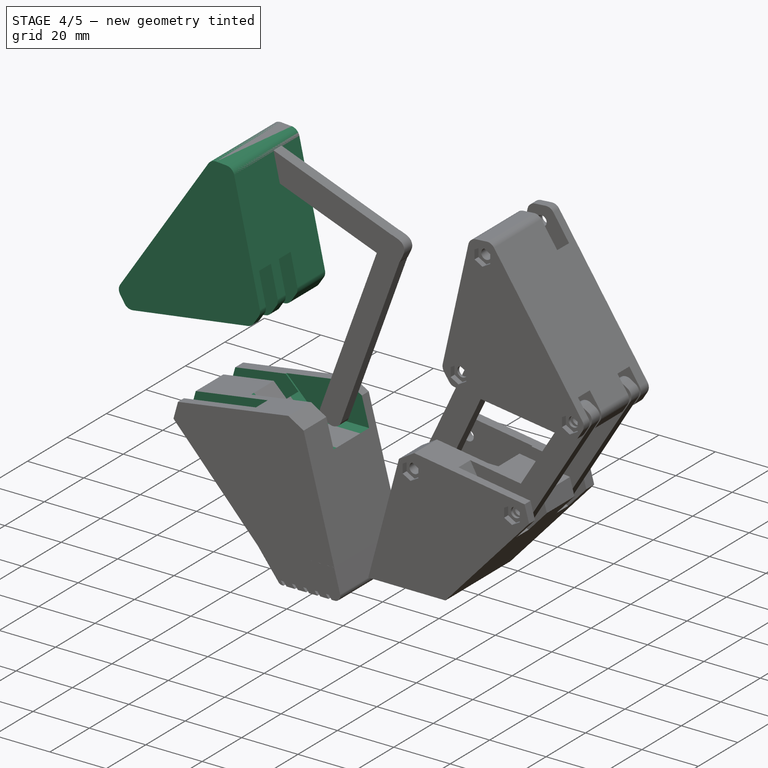
[diagram: stage 4 of 5 — iso view after this stage's code; geometry added in this stage tinted green]
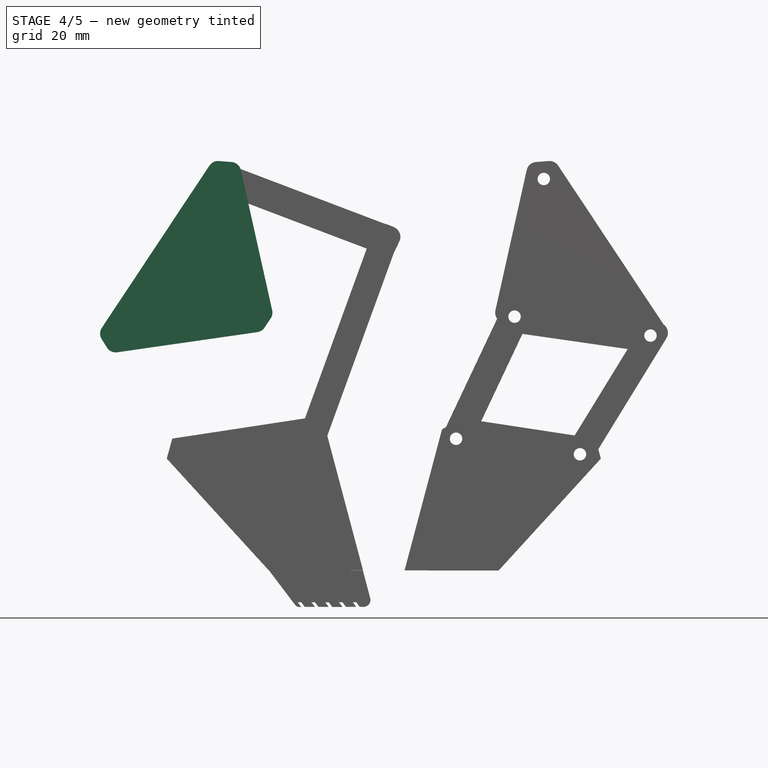
[diagram: stage 4 of 5 — front view after this stage's code; geometry added in this stage tinted green]
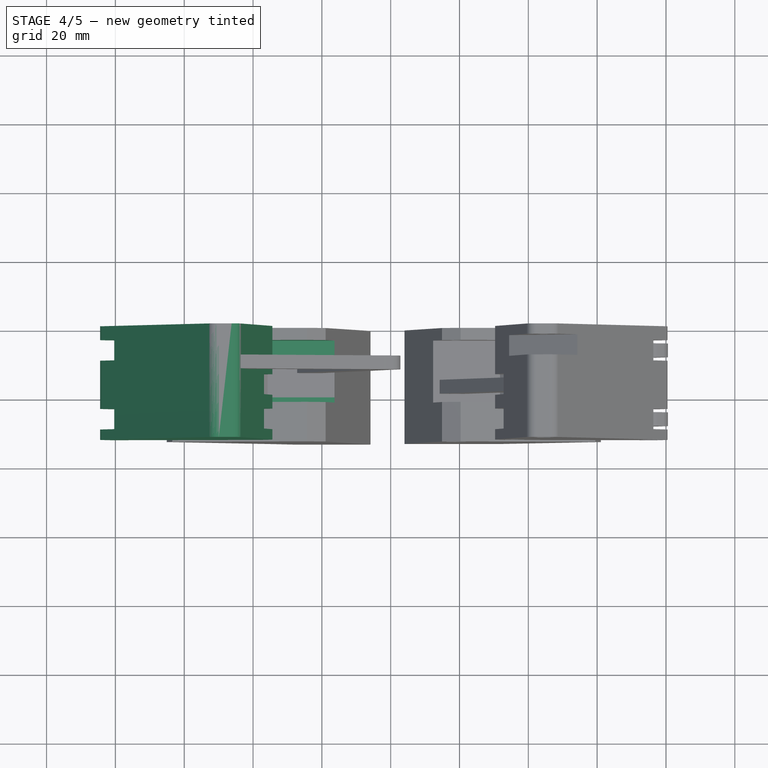
[diagram: stage 4 of 5 — top view after this stage's code; geometry added in this stage tinted green]
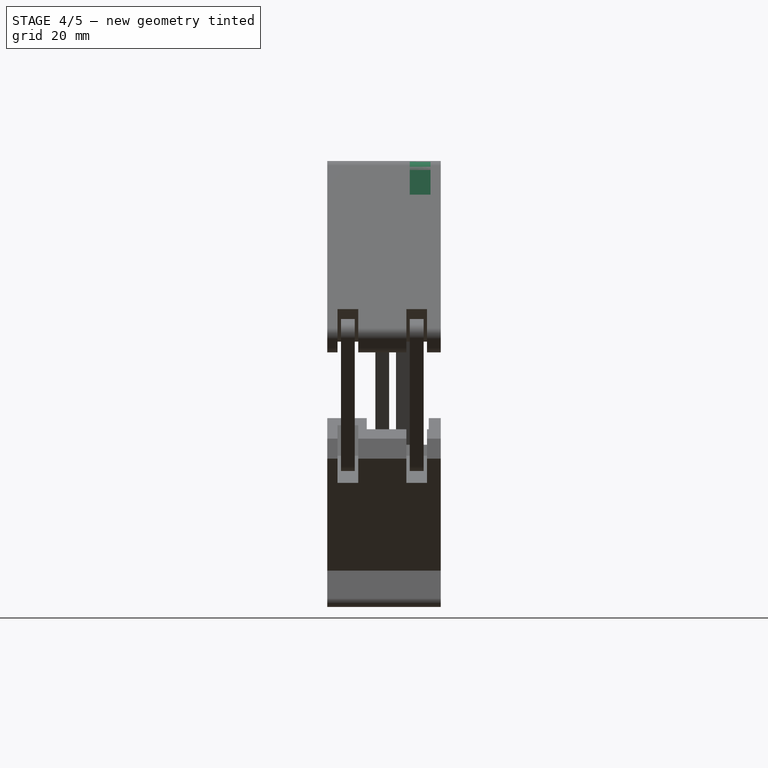
[diagram: stage 4 of 5 — right view after this stage's code; geometry added in this stage tinted green]
FEATURE [Sketcher::SketchObject] Sketch002
  Placement = pos=(0,0,0) rot=(0.926703,-0.265728,0.265728;1.64685rad)
  sketch-geometry (6):
    g0: LineSegment StartX=-40.7654 StartY=19.725 StartZ=0 EndX=-40.7654 EndY=12.9153 EndZ=0
    g1: LineSegment StartX=-40.7654 StartY=12.9153 StartZ=0 EndX=-0.0823442 EndY=-5.03519 EndZ=0
    g2: LineSegment StartX=-0.0823442 StartY=-5.03519 StartZ=0 EndX=5.26188 EndY=-2.60545 EndZ=0
    g3: LineSegment StartX=5.26188 StartY=-2.60545 StartZ=0 EndX=20.3177 EndY=40.0856 EndZ=0
    g4: LineSegment StartX=20.3177 StartY=40.0856 StartZ=0 EndX=14.0989 EndY=44.6607 EndZ=0
    g5: LineSegment StartX=14.0989 StartY=44.6607 StartZ=0 EndX=-40.7654 EndY=19.725 EndZ=0
  constraints (7):
    c: Vertical(g0)
    c: Coincident(g0,g1)
    c: Coincident(g1,g2)
    c: Coincident(g2,g3)
    c: Coincident(g3,g4)
    c: Coincident(g4,g5)
    c: Coincident(g5,g0)
FEATURE [PartDesign::Pad] Pad
  Length = 33
  Length2 = 100
  Placement = pos=(0,0,0) rot=(0.926703,-0.265728,0.265728;1.64685rad)
  Sketch = -> Sketch002
  Type = 0
FEATURE [Part::Fillet] Fillet008
  Base = -> Pad
  Edges = 2 edges r=3: [Edge11,Edge14]
FEATURE [Part::Fillet] Fillet009
  Base = -> Fillet008
  Edges = 4 edges r=3: [Edge3,Edge14,Edge22,Edge24]
FEATURE [Sketcher::SketchObject] Sketch037
  Placement = pos=(0,-24,0) rot=(1,0,0;1.5708rad)
  sketch-geometry (3):
    g0: LineSegment StartX=-44.7162 StartY=4.03934 StartZ=0 EndX=-16.0865 EndY=-8.00782 EndZ=0
    g1: LineSegment StartX=-16.0865 StartY=-8.00782 StartZ=0 EndX=-47.1257 EndY=-16.7243 EndZ=0
    g2: LineSegment StartX=-47.1257 StartY=-16.7243 StartZ=0 EndX=-44.7162 EndY=4.03934 EndZ=0
  constraints (3):
    c: Coincident(g0,g1)
    c: Coincident(g1,g2)
    c: Coincident(g2,g0)
FEATURE [PartDesign::Pad] Pad033
  Length = 6
  Length2 = 100
  Placement = pos=(0,-24,0) rot=(1,0,0;1.5708rad)
  Sketch = -> Sketch037
  Type = 0
FEATURE [Sketcher::SketchObject] Sketch053
  Placement = pos=(0,-4,0) rot=(1,0,0;1.5708rad)
  sketch-geometry (4):
    g0: LineSegment StartX=-22.8766 StartY=-50.4589 StartZ=0 EndX=-2.79575 EndY=-40.4184 EndZ=0
    g1: LineSegment StartX=-2.79575 StartY=-40.4184 StartZ=0 EndX=3.5228 EndY=-28.9065 EndZ=0
    g2: LineSegment StartX=3.5228 StartY=-28.9065 StartZ=0 EndX=-39.4087 EndY=-32.8015 EndZ=0
    g3: LineSegment StartX=-39.4087 StartY=-32.8015 StartZ=0 EndX=-22.8766 EndY=-50.4589 EndZ=0
  constraints (4):
    c: Coincident(g0,g1)
    c: Coincident(g1,g2)
    c: Coincident(g2,g3)
    c: Coincident(g3,g0)
FEATURE [PartDesign::Pad] Pad049
  Length = 6
  Length2 = 100
  Placement = pos=(0,-4,0) rot=(1,0,0;1.5708rad)
  Sketch = -> Sketch053
  Type = 0
FEATURE [Sketcher::SketchObject] Sketch055
  Placement = pos=(0,-3.5,0) rot=(1,0,0;1.5708rad)
  sketch-geometry (4):
    g0: LineSegment StartX=26.8543 StartY=-42.5089 StartZ=0 EndX=4.22651 EndY=-42.5089 EndZ=0
    g1: LineSegment StartX=4.22651 StartY=-42.5089 StartZ=0 EndX=-12.0771 EndY=-26.2633 EndZ=0
    g2: LineSegment StartX=-12.0771 StartY=-26.2633 StartZ=0 EndX=32.6562 EndY=-19.1269 EndZ=0
    g3: LineSegment StartX=32.6562 StartY=-19.1269 StartZ=0 EndX=26.8543 EndY=-42.5089 EndZ=0
  constraints (5):
    c: Horizontal(g0)
    c: Coincident(g0,g1)
    c: Coincident(g1,g2)
    c: Coincident(g2,g3)
    c: Coincident(g3,g0)
FEATURE [PartDesign::Pad] Pad051
  Length = 18
  Length2 = 100
  Placement = pos=(0,-3.5,0) rot=(1,0,0;1.5708rad)
  Sketch = -> Sketch055
  Type = 0
FEATURE [Part::Cut] Cut021
  Base = -> Pad065
  Tool = -> Fusion019
FEATURE [Part::Cut] Cut022
  Base = -> Cut021
  Tool = -> Pad079
FEATURE [PartDesign::Pad] Pad037
  Length = 6
  Length2 = 100
  Placement = pos=(0,-24,0) rot=(1,0,0;1.5708rad)
  Type = 0
FEATURE [PartDesign::Pad] Pad086
  Length = 6
  Length2 = 100
  Placement = pos=(0,-4,0) rot=(1,0,0;1.5708rad)
  Type = 0
FEATURE [PartDesign::Pad] Pad088
  Length = 6
  Length2 = 100
  Placement = pos=(0,-14,0) rot=(1,0,0;1.5708rad)
  Type = 0
FEATURE [PartDesign::Pad] Pad089
  Length = 6
  Length2 = 100
  Placement = pos=(0,-24,0) rot=(1,0,0;1.5708rad)
  Type = 0
FEATURE [Part::Cut] Cut
  Base = -> Fillet009
  Tool = -> Pad088
FEATURE [Part::Cut] Cut033
  Base = -> Cut
  Tool = -> Pad089
FEATURE [Part::Cut] Cut034
  Base = -> Cut033
  Tool = -> Pad086
FEATURE [Part::Cut] Cut035
  Base = -> Cut034
  Tool = -> Pad033
FEATURE [Part::Cut] Cut037
  Base = -> Cut022
  Tool = -> Pad051
FEATURE [Part::Cut] Cut038
  Base = -> Cut037
  Tool = -> Pad037
FEATURE [Part::Cut] Cut039
  Base = -> Cut038
  Tool = -> Pad049
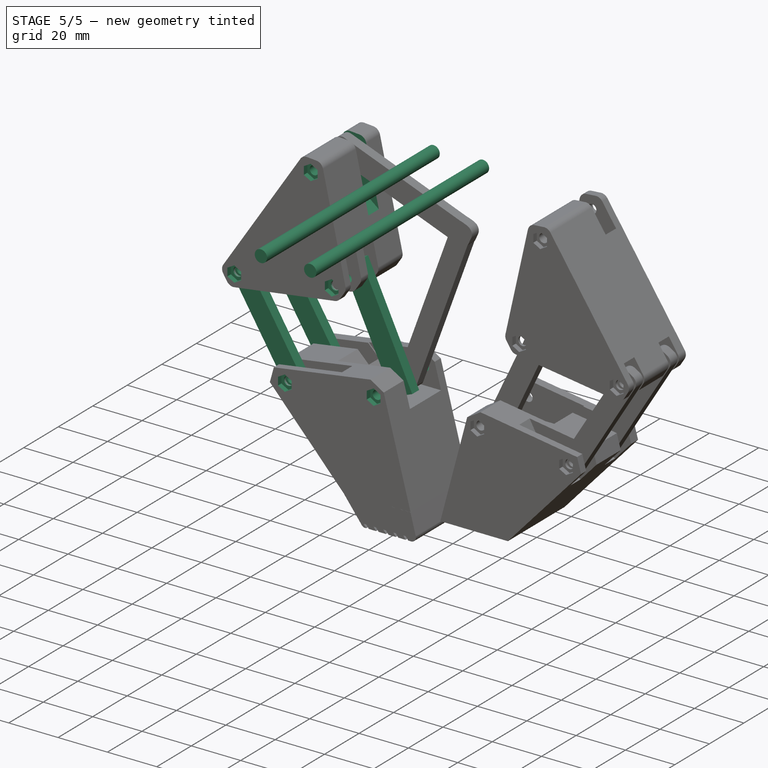
[diagram: stage 5 of 5 — iso view after this stage's code; geometry added in this stage tinted green]
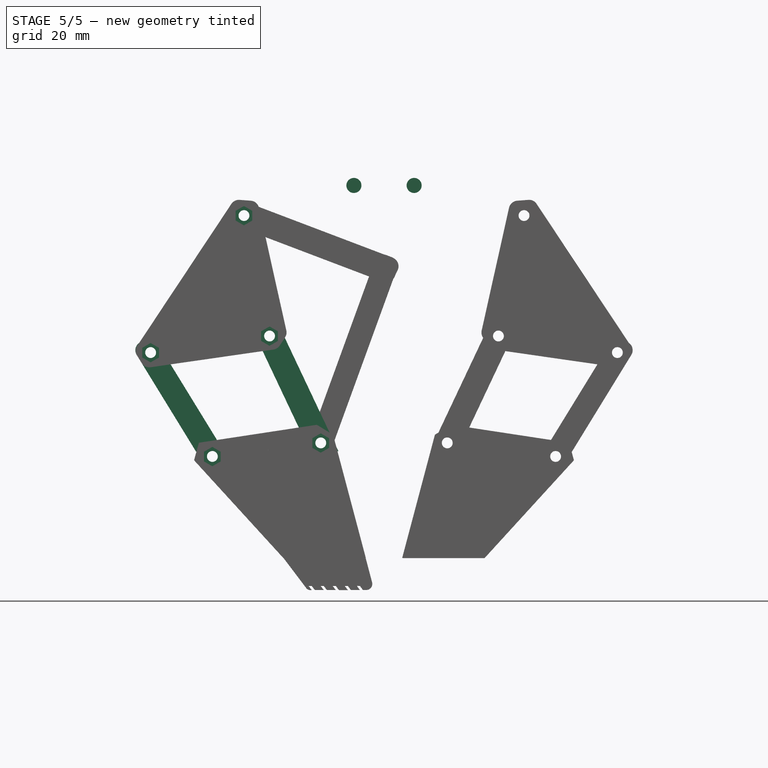
[diagram: stage 5 of 5 — front view after this stage's code; geometry added in this stage tinted green]
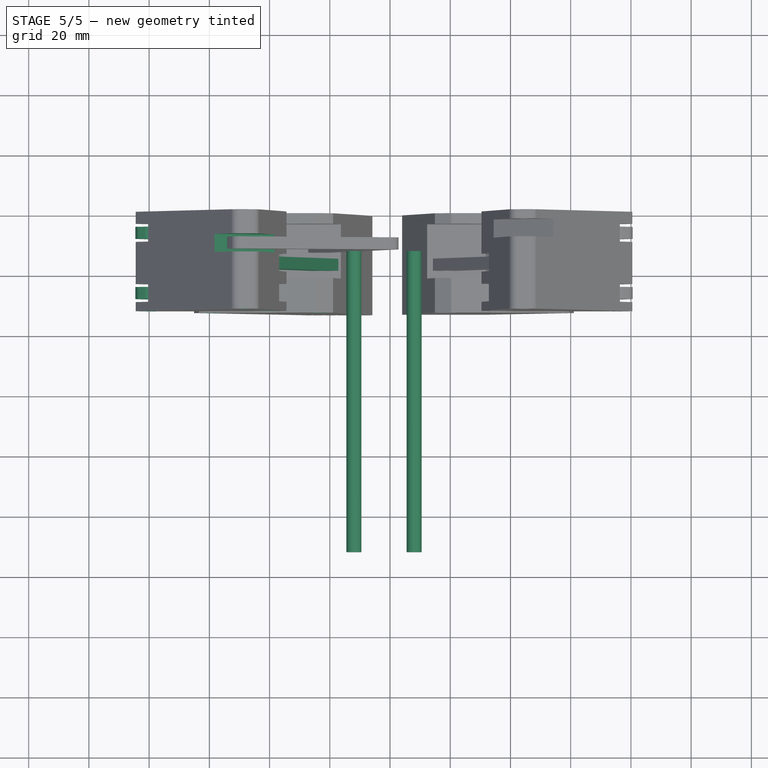
[diagram: stage 5 of 5 — top view after this stage's code; geometry added in this stage tinted green]
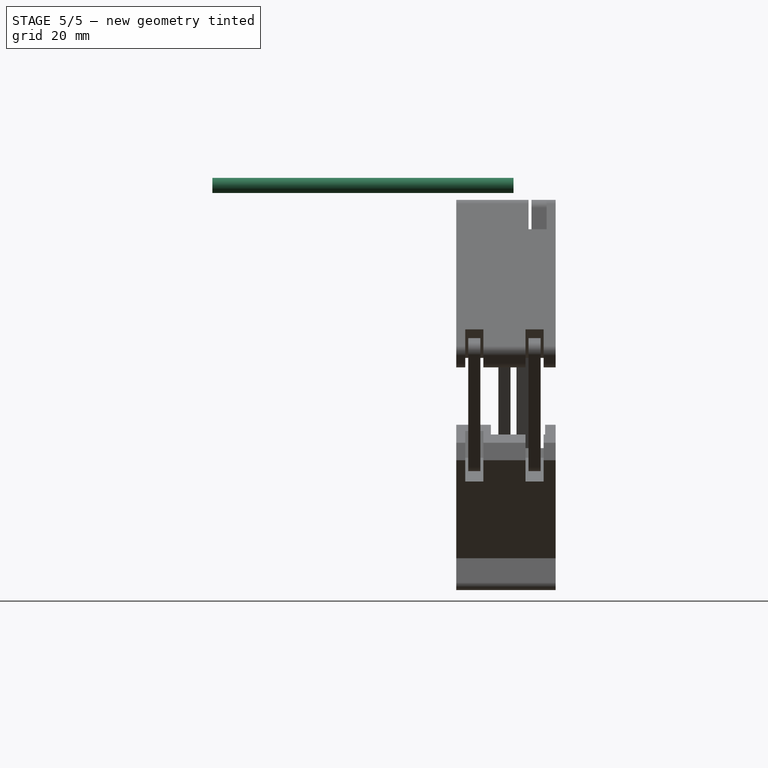
[diagram: stage 5 of 5 — right view after this stage's code; geometry added in this stage tinted green]
FEATURE [Part::Cylinder] Cylinder008  label="Cilindro008"
  Angle = 360
  Height = 100
  Placement = pos=(-8.5,30,40) rot=(1,0,0;1.5708rad)
  Radius = 1.8
FEATURE [Part::Cylinder] Cylinder012  label="Cilindro012"
  Angle = 360
  Height = 100
  Placement = pos=(0,30,0) rot=(1,0,0;1.5708rad)
  Radius = 1.8
FEATURE [Part::Cylinder] Cylinder013  label="Cilindro013"
  Angle = 360
  Height = 100
  Placement = pos=(-39.5,30,-5.5) rot=(1,0,0;1.5708rad)
  Radius = 1.8
FEATURE [Part::Cylinder] Cylinder014  label="Cilindro014"
  Angle = 360
  Height = 100
  Placement = pos=(-19,30,-40) rot=(1,0,0;1.5708rad)
  Radius = 1.8
FEATURE [Part::Cylinder] Cylinder015  label="Cilindro015"
  Angle = 360
  Height = 100
  Placement = pos=(17,30,-35.5) rot=(1,0,0;1.5708rad)
  Radius = 1.8
FEATURE [Sketcher::SketchObject] Sketch062
  Placement = pos=(0,-31,0) rot=(1,0,0;1.5708rad)
  sketch-geometry (7):
    g0: LineSegment StartX=-0.014307 StartY=-3.24781 StartZ=0 EndX=2.7612 EndY=-1.64537 EndZ=0
    g1: LineSegment StartX=2.7612 StartY=-1.64537 StartZ=0 EndX=2.7612 EndY=1.55952 EndZ=0
    g2: LineSegment StartX=2.7612 StartY=1.55952 StartZ=0 EndX=-0.014307 EndY=3.16196 EndZ=0
    g3: LineSegment StartX=-0.014307 StartY=3.16196 StartZ=0 EndX=-2.78982 EndY=1.55952 EndZ=0
    g4: LineSegment StartX=-2.78982 StartY=1.55952 StartZ=0 EndX=-2.78982 EndY=-1.64537 EndZ=0
    g5: LineSegment StartX=-2.78982 StartY=-1.64537 StartZ=0 EndX=-0.014307 EndY=-3.24781 EndZ=0
    g6: Circle [constr] CenterX=-0.014307 CenterY=-0.042923 CenterZ=0 NormalX=0 NormalY=0 NormalZ=1 Radius=3.20488
  constraints (15):
    c: Coincident(g0,g1)
    c: Coincident(g1,g2)
    c: Coincident(g2,g3)
    c: Coincident(g3,g4)
    c: Coincident(g4,g5)
    c: Coincident(g5,g0)
    c: Equal(g0, g1-g5) x5
    c: PointOnObject(g0,g6)
    c: PointOnObject(g1,g6)
    c: PointOnObject(g2,g6)
    c: PointOnObject(g3,g6)
    c: PointOnObject(g4,g6)
    c: PointOnObject(g5,g6)
    c: PointOnObject(g3,g-2)
    c: Vertical(g4)
FEATURE [PartDesign::Pad] Pad058
  Length = 4
  Length2 = 100
  Placement = pos=(0,-31,0) rot=(1,0,0;1.5708rad)
  Sketch = -> Sketch062
  Type = 0
FEATURE [Sketcher::SketchObject] Sketch063
  Placement = pos=(-39.5,-31,-5.5) rot=(1,0,0;1.5708rad)
  sketch-geometry (7):
    g0: LineSegment StartX=-0.014307 StartY=-3.24781 StartZ=0 EndX=2.7612 EndY=-1.64537 EndZ=0
    g1: LineSegment StartX=2.7612 StartY=-1.64537 StartZ=0 EndX=2.7612 EndY=1.55952 EndZ=0
    g2: LineSegment StartX=2.7612 StartY=1.55952 StartZ=0 EndX=-0.014307 EndY=3.16196 EndZ=0
    g3: LineSegment StartX=-0.014307 StartY=3.16196 StartZ=0 EndX=-2.78982 EndY=1.55952 EndZ=0
    g4: LineSegment StartX=-2.78982 StartY=1.55952 StartZ=0 EndX=-2.78982 EndY=-1.64537 EndZ=0
    g5: LineSegment StartX=-2.78982 StartY=-1.64537 StartZ=0 EndX=-0.014307 EndY=-3.24781 EndZ=0
    g6: Circle [constr] CenterX=-0.014307 CenterY=-0.042923 CenterZ=0 NormalX=0 NormalY=0 NormalZ=1 Radius=3.20488
  constraints (15):
    c: Coincident(g0,g1)
    c: Coincident(g1,g2)
    c: Coincident(g2,g3)
    c: Coincident(g3,g4)
    c: Coincident(g4,g5)
    c: Coincident(g5,g0)
    c: Equal(g0, g1-g5) x5
    c: PointOnObject(g0,g6)
    c: PointOnObject(g1,g6)
    c: PointOnObject(g2,g6)
    c: PointOnObject(g3,g6)
    c: PointOnObject(g4,g6)
    c: PointOnObject(g5,g6)
    c: PointOnObject(g3,g-2)
    c: Vertical(g4)
FEATURE [PartDesign::Pad] Pad059
  Length = 4
  Length2 = 100
  Placement = pos=(-39.5,-31,-5.5) rot=(1,0,0;1.5708rad)
  Sketch = -> Sketch063
  Type = 0
FEATURE [Sketcher::SketchObject] Sketch064
  Placement = pos=(-19,-31,-40) rot=(1,0,0;1.5708rad)
  sketch-geometry (7):
    g0: LineSegment StartX=-0.014307 StartY=-3.24781 StartZ=0 EndX=2.7612 EndY=-1.64537 EndZ=0
    g1: LineSegment StartX=2.7612 StartY=-1.64537 StartZ=0 EndX=2.7612 EndY=1.55952 EndZ=0
    g2: LineSegment StartX=2.7612 StartY=1.55952 StartZ=0 EndX=-0.014307 EndY=3.16196 EndZ=0
    g3: LineSegment StartX=-0.014307 StartY=3.16196 StartZ=0 EndX=-2.78982 EndY=1.55952 EndZ=0
    g4: LineSegment StartX=-2.78982 StartY=1.55952 StartZ=0 EndX=-2.78982 EndY=-1.64537 EndZ=0
    g5: LineSegment StartX=-2.78982 StartY=-1.64537 StartZ=0 EndX=-0.014307 EndY=-3.24781 EndZ=0
    g6: Circle [constr] CenterX=-0.014307 CenterY=-0.042923 CenterZ=0 NormalX=0 NormalY=0 NormalZ=1 Radius=3.20488
  constraints (15):
    c: Coincident(g0,g1)
    c: Coincident(g1,g2)
    c: Coincident(g2,g3)
    c: Coincident(g3,g4)
    c: Coincident(g4,g5)
    c: Coincident(g5,g0)
    c: Equal(g0, g1-g5) x5
    c: PointOnObject(g0,g6)
    c: PointOnObject(g1,g6)
    c: PointOnObject(g2,g6)
    c: PointOnObject(g3,g6)
    c: PointOnObject(g4,g6)
    c: PointOnObject(g5,g6)
    c: PointOnObject(g3,g-2)
    c: Vertical(g4)
FEATURE [PartDesign::Pad] Pad060
  Length = 4
  Length2 = 100
  Placement = pos=(-19,-31,-40) rot=(1,0,0;1.5708rad)
  Sketch = -> Sketch064
  Type = 0
FEATURE [Sketcher::SketchObject] Sketch065
  Placement = pos=(17,-31,-35.5) rot=(1,0,0;1.5708rad)
  sketch-geometry (7):
    g0: LineSegment StartX=-0.014307 StartY=-3.24781 StartZ=0 EndX=2.7612 EndY=-1.64537 EndZ=0
    g1: LineSegment StartX=2.7612 StartY=-1.64537 StartZ=0 EndX=2.7612 EndY=1.55952 EndZ=0
    g2: LineSegment StartX=2.7612 StartY=1.55952 StartZ=0 EndX=-0.014307 EndY=3.16196 EndZ=0
    g3: LineSegment StartX=-0.014307 StartY=3.16196 StartZ=0 EndX=-2.78982 EndY=1.55952 EndZ=0
    g4: LineSegment StartX=-2.78982 StartY=1.55952 StartZ=0 EndX=-2.78982 EndY=-1.64537 EndZ=0
    g5: LineSegment StartX=-2.78982 StartY=-1.64537 StartZ=0 EndX=-0.014307 EndY=-3.24781 EndZ=0
    g6: Circle [constr] CenterX=-0.014307 CenterY=-0.042923 CenterZ=0 NormalX=0 NormalY=0 NormalZ=1 Radius=3.20488
  constraints (15):
    c: Coincident(g0,g1)
    c: Coincident(g1,g2)
    c: Coincident(g2,g3)
    c: Coincident(g3,g4)
    c: Coincident(g4,g5)
    c: Coincident(g5,g0)
    c: Equal(g0, g1-g5) x5
    c: PointOnObject(g0,g6)
    c: PointOnObject(g1,g6)
    c: PointOnObject(g2,g6)
    c: PointOnObject(g3,g6)
    c: PointOnObject(g4,g6)
    c: PointOnObject(g5,g6)
    c: PointOnObject(g3,g-2)
    c: Vertical(g4)
FEATURE [PartDesign::Pad] Pad061
  Length = 4
  Length2 = 100
  Placement = pos=(17,-31,-35.5) rot=(1,0,0;1.5708rad)
  Sketch = -> Sketch065
  Type = 0
FEATURE [Sketcher::SketchObject] Sketch066
  Placement = pos=(-8.5,-31,40) rot=(1,0,0;1.5708rad)
  sketch-geometry (7):
    g0: LineSegment StartX=-0.014307 StartY=-3.24781 StartZ=0 EndX=2.7612 EndY=-1.64537 EndZ=0
    g1: LineSegment StartX=2.7612 StartY=-1.64537 StartZ=0 EndX=2.7612 EndY=1.55952 EndZ=0
    g2: LineSegment StartX=2.7612 StartY=1.55952 StartZ=0 EndX=-0.014307 EndY=3.16196 EndZ=0
    g3: LineSegment StartX=-0.014307 StartY=3.16196 StartZ=0 EndX=-2.78982 EndY=1.55952 EndZ=0
    g4: LineSegment StartX=-2.78982 StartY=1.55952 StartZ=0 EndX=-2.78982 EndY=-1.64537 EndZ=0
    g5: LineSegment StartX=-2.78982 StartY=-1.64537 StartZ=0 EndX=-0.014307 EndY=-3.24781 EndZ=0
    g6: Circle [constr] CenterX=-0.014307 CenterY=-0.042923 CenterZ=0 NormalX=0 NormalY=0 NormalZ=1 Radius=3.20488
  constraints (15):
    c: Coincident(g0,g1)
    c: Coincident(g1,g2)
    c: Coincident(g2,g3)
    c: Coincident(g3,g4)
    c: Coincident(g4,g5)
    c: Coincident(g5,g0)
    c: Equal(g0, g1-g5) x5
    c: PointOnObject(g0,g6)
    c: PointOnObject(g1,g6)
    c: PointOnObject(g2,g6)
    c: PointOnObject(g3,g6)
    c: PointOnObject(g4,g6)
    c: PointOnObject(g5,g6)
    c: PointOnObject(g3,g-2)
    c: Vertical(g4)
FEATURE [PartDesign::Pad] Pad062
  Length = 4
  Length2 = 100
  Placement = pos=(-8.5,-31,40) rot=(1,0,0;1.5708rad)
  Sketch = -> Sketch066
  Type = 0
FEATURE [Part::MultiFuse] Fusion014
  Shapes = -> [Pad058,Pad060,Pad059,Pad061,Pad062]
FEATURE [Sketcher::SketchObject] Sketch071
  Placement = pos=(0,-15,0) rot=(1,0,0;1.5708rad)
  sketch-geometry (4):
    g0: LineSegment StartX=-5.8347 StartY=2.47919 StartZ=0 EndX=2.12677 EndY=5.59698 EndZ=0
    g1: LineSegment StartX=2.12677 StartY=5.59698 StartZ=0 EndX=22.8292 EndY=-38.2205 EndZ=0
    g2: LineSegment StartX=22.8292 StartY=-38.2205 StartZ=0 EndX=14.8678 EndY=-41.3383 EndZ=0
    g3: LineSegment StartX=14.8678 StartY=-41.3383 StartZ=0 EndX=-5.8347 EndY=2.47919 EndZ=0
  constraints (6):
    c: Coincident(g0,g1)
    c: Coincident(g1,g2)
    c: Coincident(g2,g3)
    c: Coincident(g3,g0)
    c: Parallel(g3,g1)
    c: Parallel(g2,g0)
FEATURE [PartDesign::Pad] Pad067
  Length = 4
  Length2 = 100
  Placement = pos=(0,-15,0) rot=(1,0,0;1.5708rad)
  Sketch = -> Sketch071
  Type = 0
FEATURE [Sketcher::SketchObject] Sketch089
  Placement = pos=(0,-8,0) rot=(1,0,0;1.5708rad)
  sketch-geometry (4):
    g0: LineSegment StartX=-14.595 StartY=49.4268 StartZ=0 EndX=-21.1147 EndY=37.734 EndZ=0
    g1: LineSegment StartX=-21.1147 StartY=37.734 StartZ=0 EndX=4.39696 EndY=17.3955 EndZ=0
    g2: LineSegment StartX=4.39696 StartY=17.3955 StartZ=0 EndX=4.39696 EndY=50.9858 EndZ=0
    g3: LineSegment StartX=4.39696 StartY=50.9858 StartZ=0 EndX=-14.595 EndY=49.4268 EndZ=0
  constraints (5):
    c: Coincident(g0,g1)
    c: Coincident(g1,g2)
    c: Vertical(g2)
    c: Coincident(g2,g3)
    c: Coincident(g3,g0)
FEATURE [PartDesign::Pad] Pad085
  Length = 6
  Length2 = 100
  Placement = pos=(0,-8,0) rot=(1,0,0;1.5708rad)
  Sketch = -> Sketch089
  Type = 0
FEATURE [Part::Cylinder] Cylinder049  label="Cilindro049"
  Angle = 360
  Height = 100
  Placement = pos=(28,-14,50) rot=(1,0,0;1.5708rad)
  Radius = 2.5
FEATURE [Part::Cylinder] Cylinder050  label="Cilindro050"
  Angle = 360
  Height = 100
  Placement = pos=(48,-14,50) rot=(1,0,0;1.5708rad)
  Radius = 2.5
FEATURE [Part::MultiFuse] Fusion032
  Shapes = -> [Cylinder008,Cylinder014,Cylinder013,Cylinder015,Cylinder012]
FEATURE [Part::Cut] Cut036
  Base = -> Cut035
  Tool = -> Pad085
FEATURE [Part::MultiFuse] Fusion034
  Shapes = -> [Fusion,Cut039,Cut036,Pad067,Fillet031,Fillet030]
FEATURE [Part::Cut] Cut040
  Base = -> Fusion034
  Tool = -> Fusion032
FEATURE [Part::Cut] Cut041
  Base = -> Cut040
  Tool = -> Fusion014
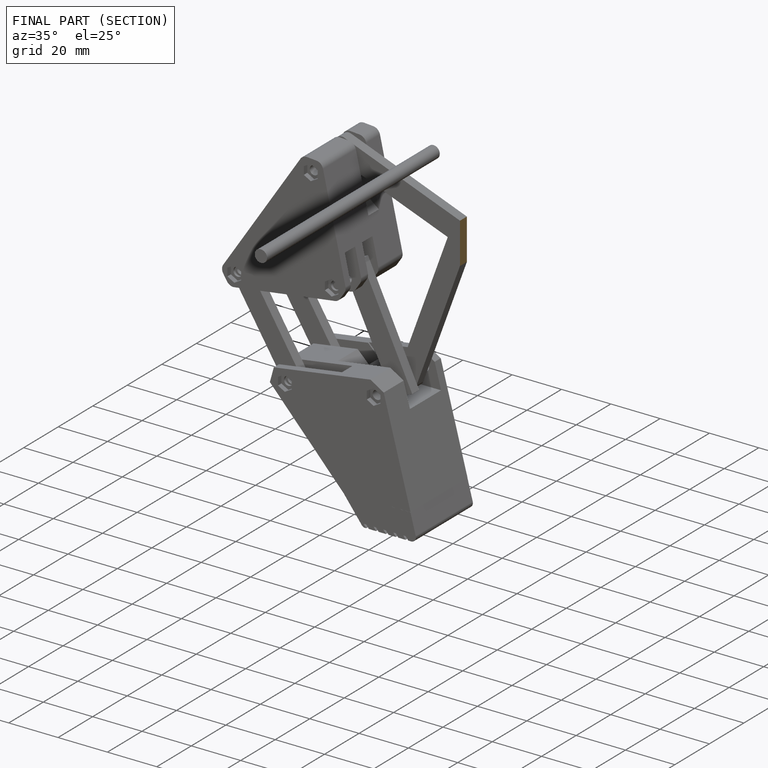
[diagram: finished part — half-section view (interior)]
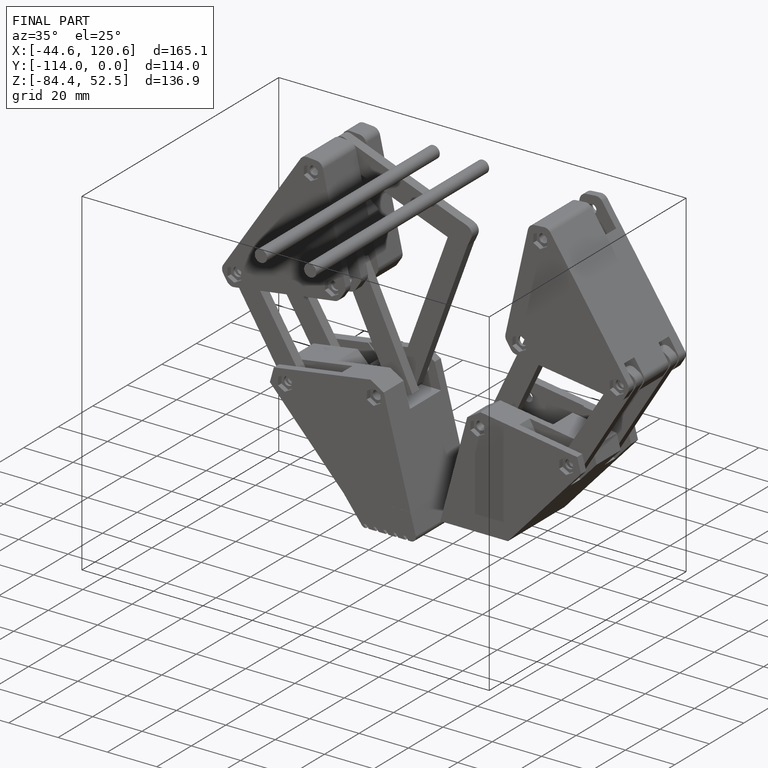
[diagram: finished part — iso view with bounding-box wireframe]
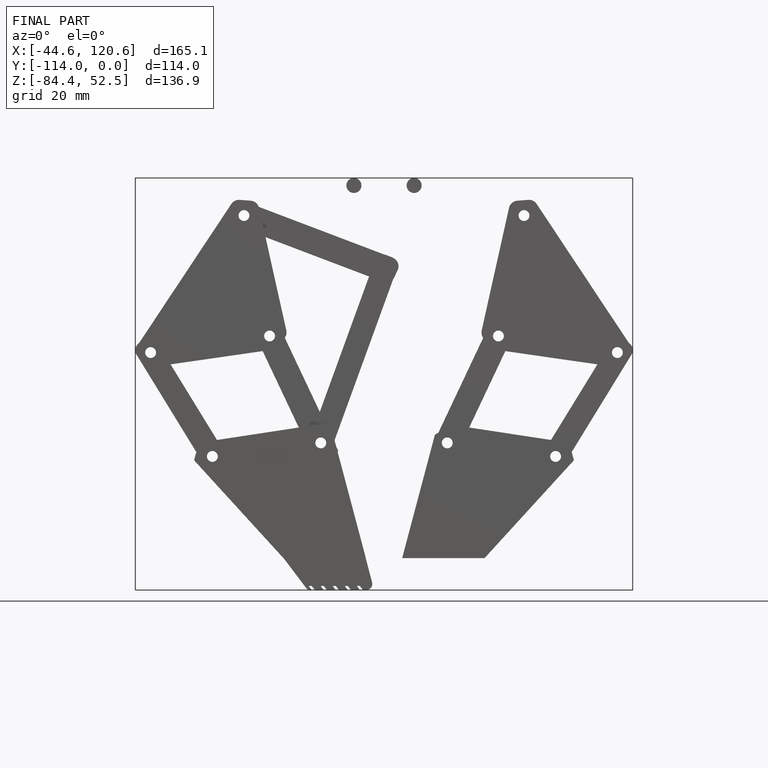
[diagram: finished part — front view with bounding-box wireframe]
